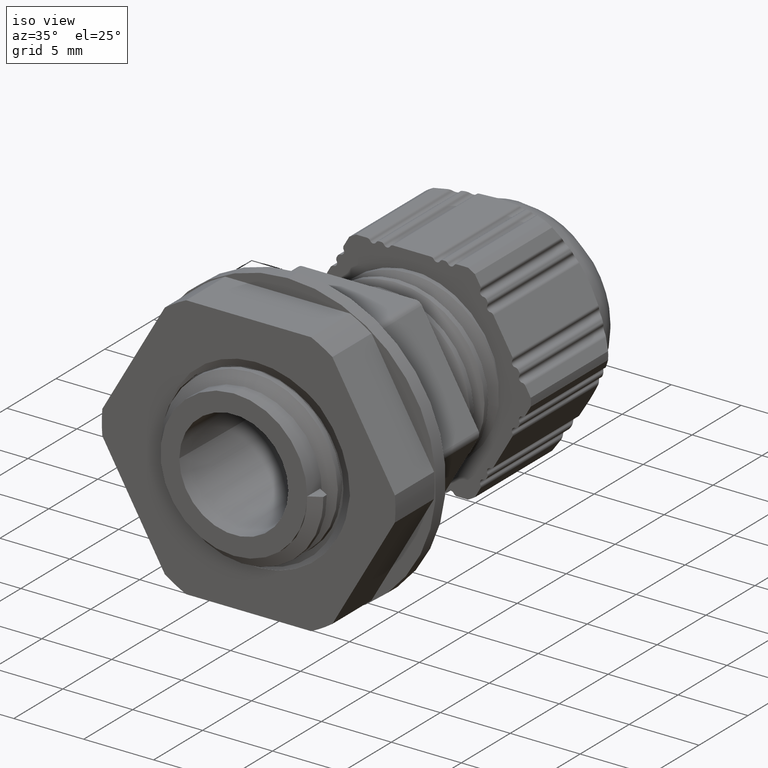
[diagram: clean part render]
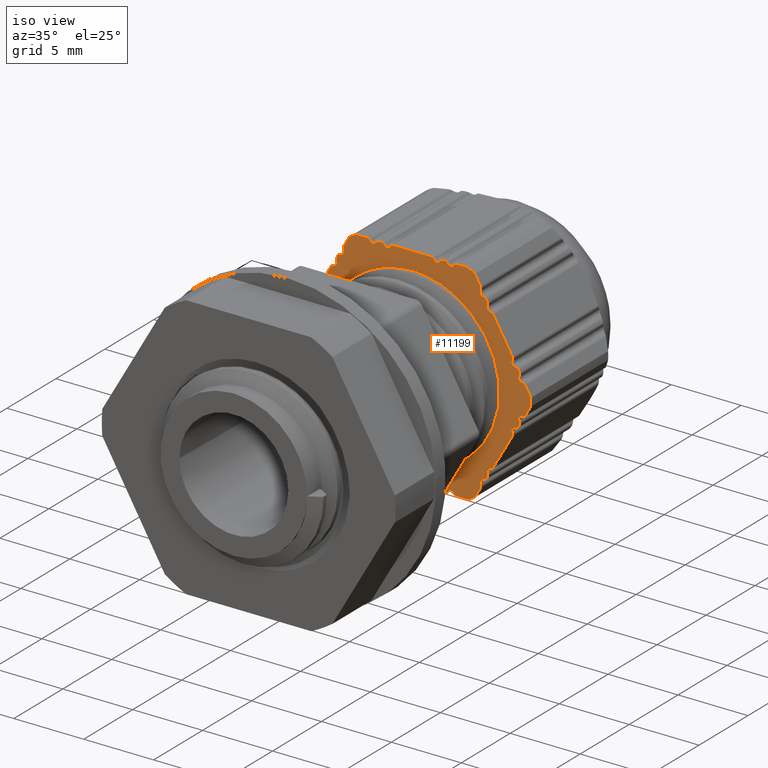
[diagram: same view with one face highlighted and labeled with its STEP entity id]
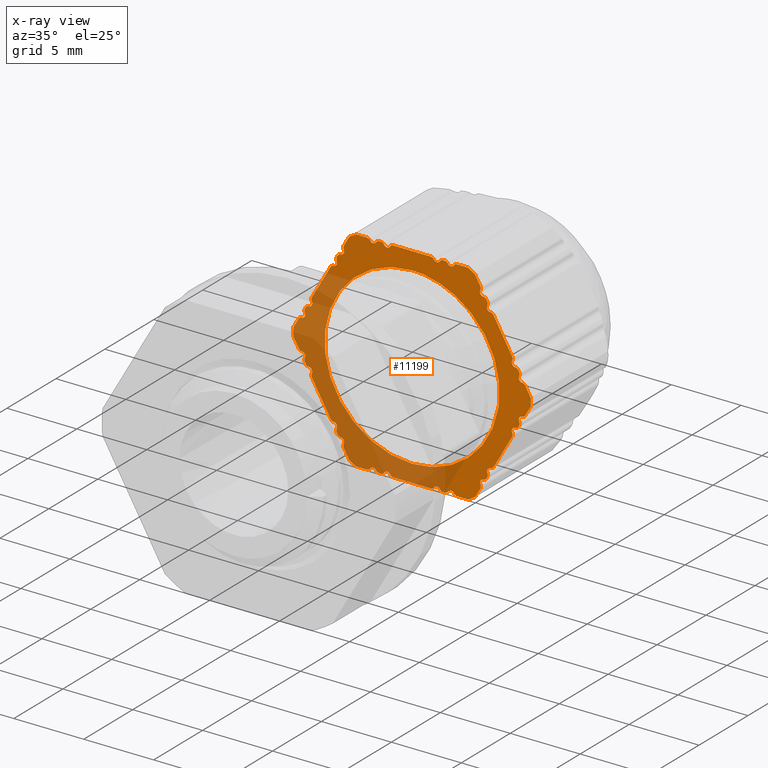
[diagram: x-ray of the same camera — body ghosted, the highlighted face saturated]
A machine part, iso view. The second image highlights one B-rep face of the part: STEP entity #11199.
The next image is the same camera in x-ray: the body ghosted, the highlighted face saturated — about 42% of this face is hidden behind the body in this view.
In plain terms, the highlighted planar face has unit normal (0, 1, 0).
Its self-contained STEP definition (entity closure, byte-faithful):
#258 = CIRCLE ( 'NONE', #269, 0.2500000000000028300 ) ;
#264 = AXIS2_PLACEMENT_3D ( 'NONE', #8399, #8390, #8379 ) ;
#266 = CIRCLE ( 'NONE', #300, 0.2500000000000036600 ) ;
#269 = AXIS2_PLACEMENT_3D ( 'NONE', #8602, #8639, #8624 ) ;
#280 = VECTOR ( 'NONE', #8393, 1000.000000000000000 ) ;
#298 = CIRCLE ( 'NONE', #309, 0.2499999999999985000 ) ;
#300 = AXIS2_PLACEMENT_3D ( 'NONE', #8402, #8401, #8380 ) ;
#304 = CIRCLE ( 'NONE', #264, 0.2499999999999976100 ) ;
#309 = AXIS2_PLACEMENT_3D ( 'NONE', #8441, #8420, #8417 ) ;
#310 = CIRCLE ( 'NONE', #365, 0.2500000000000028300 ) ;
#316 = CIRCLE ( 'NONE', #317, 0.2500000000000223200 ) ;
#317 = AXIS2_PLACEMENT_3D ( 'NONE', #8949, #8962, #8939 ) ;
#327 = VECTOR ( 'NONE', #8987, 1000.000000000000000 ) ;
#329 = CIRCLE ( 'NONE', #352, 0.2500000000000019400 ) ;
#336 = CIRCLE ( 'NONE', #343, 0.2499999999999980600 ) ;
#343 = AXIS2_PLACEMENT_3D ( 'NONE', #9049, #9045, #9021 ) ;
#352 = AXIS2_PLACEMENT_3D ( 'NONE', #8950, #8930, #8951 ) ;
#357 = VECTOR ( 'NONE', #8936, 1000.000000000000000 ) ;
#365 = AXIS2_PLACEMENT_3D ( 'NONE', #8821, #8793, #8822 ) ;
#369 = VECTOR ( 'NONE', #8867, 1000.000000000000000 ) ;
#371 = VECTOR ( 'NONE', #8847, 1000.000000000000000 ) ;
#374 = CIRCLE ( 'NONE', #429, 0.2500000000000045500 ) ;
#377 = CIRCLE ( 'NONE', #396, 0.2500000000000028300 ) ;
#378 = AXIS2_PLACEMENT_3D ( 'NONE', #9185, #9174, #9175 ) ;
#386 = AXIS2_PLACEMENT_3D ( 'NONE', #9111, #9092, #9094 ) ;
#387 = CIRCLE ( 'NONE', #432, 0.2500000000000028300 ) ;
#388 = AXIS2_PLACEMENT_3D ( 'NONE', #9139, #9126, #9151 ) ;
#389 = CIRCLE ( 'NONE', #410, 0.2500000000000023900 ) ;
#390 = CIRCLE ( 'NONE', #392, 0.2499999999999985000 ) ;
#392 = AXIS2_PLACEMENT_3D ( 'NONE', #9076, #9078, #9100 ) ;
#394 = CIRCLE ( 'NONE', #399, 0.2499999999999980600 ) ;
#396 = AXIS2_PLACEMENT_3D ( 'NONE', #9127, #9148, #9128 ) ;
#397 = VECTOR ( 'NONE', #9188, 1000.000000000000000 ) ;
#398 = AXIS2_PLACEMENT_3D ( 'NONE', #9183, #9160, #9202 ) ;
#399 = AXIS2_PLACEMENT_3D ( 'NONE', #9089, #9090, #9086 ) ;
#401 = CIRCLE ( 'NONE', #388, 0.2500000000000036600 ) ;
#402 = AXIS2_PLACEMENT_3D ( 'NONE', #9163, #9189, #9162 ) ;
#403 = CIRCLE ( 'NONE', #402, 0.2499999999999985000 ) ;
#404 = VECTOR ( 'NONE', #9150, 1000.000000000000000 ) ;
#405 = CIRCLE ( 'NONE', #427, 0.2499999999999447100 ) ;
#406 = CIRCLE ( 'NONE', #415, 0.2499999999999985000 ) ;
#410 = AXIS2_PLACEMENT_3D ( 'NONE', #9037, #9022, #9051 ) ;
#415 = AXIS2_PLACEMENT_3D ( 'NONE', #9184, #9168, #9158 ) ;
#418 = CIRCLE ( 'NONE', #378, 0.2500000000000730500 ) ;
#423 = CIRCLE ( 'NONE', #386, 0.2499999999999985000 ) ;
#424 = CIRCLE ( 'NONE', #398, 0.2499999999999985000 ) ;
#427 = AXIS2_PLACEMENT_3D ( 'NONE', #9215, #9206, #9208 ) ;
#429 = AXIS2_PLACEMENT_3D ( 'NONE', #9117, #9149, #9147 ) ;
#430 = VECTOR ( 'NONE', #9187, 1000.000000000000000 ) ;
#432 = AXIS2_PLACEMENT_3D ( 'NONE', #9115, #9079, #9098 ) ;
#435 = CIRCLE ( 'NONE', #440, 0.2499999999999447100 ) ;
#436 = AXIS2_PLACEMENT_3D ( 'NONE', #9341, #9372, #9363 ) ;
#437 = VECTOR ( 'NONE', #9405, 1000.000000000000000 ) ;
#438 = CIRCLE ( 'NONE', #551, 0.2499999999999438500 ) ;
#440 = AXIS2_PLACEMENT_3D ( 'NONE', #9316, #9328, #9304 ) ;
#441 = CIRCLE ( 'NONE', #459, 0.2499999999999993600 ) ;
#454 = CIRCLE ( 'NONE', #461, 0.2499999999999442700 ) ;
#457 = AXIS2_PLACEMENT_3D ( 'NONE', #9384, #9344, #9395 ) ;
#458 = AXIS2_PLACEMENT_3D ( 'NONE', #9289, #9290, #9291 ) ;
#459 = AXIS2_PLACEMENT_3D ( 'NONE', #9207, #9209, #9246 ) ;
#461 = AXIS2_PLACEMENT_3D ( 'NONE', #9385, #9373, #9382 ) ;
#462 = AXIS2_PLACEMENT_3D ( 'NONE', #9310, #9312, #9317 ) ;
#463 = CIRCLE ( 'NONE', #457, 0.2500000000000080500 ) ;
#464 = AXIS2_PLACEMENT_3D ( 'NONE', #9244, #9227, #9235 ) ;
#466 = CIRCLE ( 'NONE', #468, 0.2499999999999442700 ) ;
#468 = AXIS2_PLACEMENT_3D ( 'NONE', #9420, #9408, #9418 ) ;
#469 = AXIS2_PLACEMENT_3D ( 'NONE', #9240, #9226, #9241 ) ;
#470 = CIRCLE ( 'NONE', #436, 0.2499999999999976100 ) ;
#478 = CIRCLE ( 'NONE', #484, 0.2500000000000088800 ) ;
#480 = AXIS2_PLACEMENT_3D ( 'NONE', #9224, #9243, #9237 ) ;
#481 = CIRCLE ( 'NONE', #462, 0.2499999999999993600 ) ;
#484 = AXIS2_PLACEMENT_3D ( 'NONE', #9219, #9230, #9228 ) ;
#486 = VECTOR ( 'NONE', #9321, 1000.000000000000000 ) ;
#487 = CIRCLE ( 'NONE', #469, 0.2499999999999447100 ) ;
#489 = CIRCLE ( 'NONE', #480, 0.2499999999999985000 ) ;
#491 = CIRCLE ( 'NONE', #464, 0.2499999999999441600 ) ;
#492 = VECTOR ( 'NONE', #9287, 1000.000000000000000 ) ;
#496 = CIRCLE ( 'NONE', #458, 0.2500000000000080500 ) ;
#498 = CIRCLE ( 'NONE', #508, 0.2499999999999993600 ) ;
#499 = CIRCLE ( 'NONE', #505, 0.2500000000000080500 ) ;
#501 = AXIS2_PLACEMENT_3D ( 'NONE', #9401, #9431, #9422 ) ;
#504 = CIRCLE ( 'NONE', #522, 0.2499999999999441600 ) ;
#505 = AXIS2_PLACEMENT_3D ( 'NONE', #9663, #9666, #9684 ) ;
#506 = CIRCLE ( 'NONE', #571, 0.2499999999999993600 ) ;
#507 = AXIS2_PLACEMENT_3D ( 'NONE', #9569, #9545, #9566 ) ;
#508 = AXIS2_PLACEMENT_3D ( 'NONE', #9659, #9638, #9628 ) ;
#510 = VECTOR ( 'NONE', #9485, 1000.000000000000000 ) ;
#512 = CIRCLE ( 'NONE', #526, 0.2499999999999991400 ) ;
#513 = VECTOR ( 'NONE', #9507, 1000.000000000000000 ) ;
#514 = AXIS2_PLACEMENT_3D ( 'NONE', #9521, #9513, #9492 ) ;
#516 = VECTOR ( 'NONE', #9409, 1000.000000000000000 ) ;
#517 = AXIS2_PLACEMENT_3D ( 'NONE', #9415, #9416, #9421 ) ;
#518 = CIRCLE ( 'NONE', #535, 0.2499999999999993600 ) ;
#520 = CIRCLE ( 'NONE', #501, 0.2499999999999438500 ) ;
#522 = AXIS2_PLACEMENT_3D ( 'NONE', #9442, #9469, #9461 ) ;
#523 = AXIS2_PLACEMENT_3D ( 'NONE', #9652, #9667, #9644 ) ;
#524 = VECTOR ( 'NONE', #9567, 1000.000000000000000 ) ;
#525 = VECTOR ( 'NONE', #9531, 1000.000000000000000 ) ;
#526 = AXIS2_PLACEMENT_3D ( 'NONE', #9447, #9470, #9452 ) ;
#527 = VECTOR ( 'NONE', #9533, 1000.000000000000000 ) ;
#532 = AXIS2_PLACEMENT_3D ( 'NONE', #9478, #9483, #9439 ) ;
#533 = CIRCLE ( 'NONE', #546, 0.2499999999999438500 ) ;
#535 = AXIS2_PLACEMENT_3D ( 'NONE', #9486, #9515, #9497 ) ;
#536 = VECTOR ( 'NONE', #9432, 1000.000000000000000 ) ;
#537 = CIRCLE ( 'NONE', #532, 0.2499999999999993600 ) ;
#539 = CIRCLE ( 'NONE', #523, 0.2500000000000082700 ) ;
#540 = CIRCLE ( 'NONE', #554, 0.2500000000000006700 ) ;
#543 = CIRCLE ( 'NONE', #507, 0.2500000000000076100 ) ;
#546 = AXIS2_PLACEMENT_3D ( 'NONE', #9303, #9456, #9475 ) ;
#547 = CIRCLE ( 'NONE', #514, 0.2500000000000080500 ) ;
#548 = VECTOR ( 'NONE', #9660, 1000.000000000000000 ) ;
#551 = AXIS2_PLACEMENT_3D ( 'NONE', #9417, #9402, #9436 ) ;
#554 = AXIS2_PLACEMENT_3D ( 'NONE', #9634, #9625, #9646 ) ;
#557 = CIRCLE ( 'NONE', #517, 0.2500000000000080500 ) ;
#563 = CIRCLE ( 'NONE', #586, 0.2499999999999987000 ) ;
#564 = VECTOR ( 'NONE', #9674, 1000.000000000000000 ) ;
#567 = CIRCLE ( 'NONE', #589, 0.2500000000000080500 ) ;
#568 = VECTOR ( 'NONE', #9786, 1000.000000000000000 ) ;
#569 = CIRCLE ( 'NONE', #576, 0.2500000000000080500 ) ;
#571 = AXIS2_PLACEMENT_3D ( 'NONE', #9678, #9707, #9702 ) ;
#574 = AXIS2_PLACEMENT_3D ( 'NONE', #9686, #9688, #9689 ) ;
#576 = AXIS2_PLACEMENT_3D ( 'NONE', #9819, #9849, #9840 ) ;
#577 = AXIS2_PLACEMENT_3D ( 'NONE', #9825, #9822, #9821 ) ;
#584 = VECTOR ( 'NONE', #9812, 1000.000000000000000 ) ;
#585 = CIRCLE ( 'NONE', #616, 0.2500000000000080500 ) ;
#586 = AXIS2_PLACEMENT_3D ( 'NONE', #9712, #9693, #9692 ) ;
#589 = AXIS2_PLACEMENT_3D ( 'NONE', #9816, #9813, #9817 ) ;
#591 = CIRCLE ( 'NONE', #600, 0.2499999999999646700 ) ;
#595 = CIRCLE ( 'NONE', #610, 0.2499999999999993600 ) ;
#600 = AXIS2_PLACEMENT_3D ( 'NONE', #9705, #9691, #9714 ) ;
#605 = CIRCLE ( 'NONE', #577, 0.2500000000000086600 ) ;
#609 = AXIS2_PLACEMENT_3D ( 'NONE', #9694, #9673, #9711 ) ;
#610 = AXIS2_PLACEMENT_3D ( 'NONE', #9752, #9732, #9729 ) ;
#612 = CIRCLE ( 'NONE', #609, 0.2499999999999958900 ) ;
#613 = CIRCLE ( 'NONE', #574, 0.2499999999999985000 ) ;
#616 = AXIS2_PLACEMENT_3D ( 'NONE', #9780, #9793, #9764 ) ;
#626 = AXIS2_PLACEMENT_3D ( 'NONE', #9901, #9896, #9866 ) ;
#644 = CIRCLE ( 'NONE', #626, 0.2500000000000028300 ) ;
#735 = AXIS2_PLACEMENT_3D ( 'NONE', #7300, #7288, #7284 ) ;
#1041 = CARTESIAN_POINT ( 'NONE',  ( 0.0000000000000000000, 3.533406263480283600, 0.0000000000000000000 ) ) ;
#1044 = DIRECTION ( 'NONE',  ( 0.0000000000000000000, 1.000000000000000000, 0.0000000000000000000 ) ) ;
#1061 = DIRECTION ( 'NONE',  ( 0.0000000000000000000, 0.0000000000000000000, -1.000000000000000000 ) ) ;
#1154 = DIRECTION ( 'NONE',  ( 8.881784197001252300E-016, 0.0000000000000000000, -1.000000000000000000 ) ) ;
#1173 = CARTESIAN_POINT ( 'NONE',  ( 0.0000000000000000000, 3.533406263480283600, 0.0000000000000000000 ) ) ;
#1177 = DIRECTION ( 'NONE',  ( 0.0000000000000000000, 1.000000000000000000, 0.0000000000000000000 ) ) ;
#1697 = DIRECTION ( 'NONE',  ( 0.0000000000000000000, 1.000000000000000000, 0.0000000000000000000 ) ) ;
#1701 = CARTESIAN_POINT ( 'NONE',  ( 0.0000000000000000000, 3.533406263480283600, 0.0000000000000000000 ) ) ;
#1720 = DIRECTION ( 'NONE',  ( 0.0000000000000000000, 0.0000000000000000000, -1.000000000000000000 ) ) ;
#2036 = EDGE_CURVE ( 'NONE', #13283, #13227, #14269, .T. ) ;
#2054 = EDGE_CURVE ( 'NONE', #13280, #13231, #14290, .T. ) ;
#2155 = EDGE_CURVE ( 'NONE', #13231, #13283, #14351, .T. ) ;
#2339 = CARTESIAN_POINT ( 'NONE',  ( -1.780724480503832000, 3.533406263480283600, 7.499999999999964500 ) ) ;
#2347 = DIRECTION ( 'NONE',  ( 0.0000000000000000000, 0.0000000000000000000, -1.000000000000000000 ) ) ;
#2362 = DIRECTION ( 'NONE',  ( 0.0000000000000000000, 1.000000000000000000, 0.0000000000000000000 ) ) ;
#2368 = DIRECTION ( 'NONE',  ( 1.040834085585780100E-014, 0.0000000000000000000, -1.000000000000000000 ) ) ;
#2375 = CARTESIAN_POINT ( 'NONE',  ( 0.0000000000000000000, 3.533406263480282300, 0.0000000000000000000 ) ) ;
#2378 = DIRECTION ( 'NONE',  ( 0.0000000000000000000, 1.000000000000000000, 0.0000000000000000000 ) ) ;
#2387 = DIRECTION ( 'NONE',  ( 0.0000000000000000000, 1.000000000000000000, 0.0000000000000000000 ) ) ;
#2411 = CARTESIAN_POINT ( 'NONE',  ( 0.0000000000000000000, 3.533406263480282300, 0.0000000000000000000 ) ) ;
#2427 = DIRECTION ( 'NONE',  ( 1.953992523340275500E-014, 0.0000000000000000000, -1.000000000000000000 ) ) ;
#2440 = CARTESIAN_POINT ( 'NONE',  ( -3.213737182396349200, 3.533406263480283600, 7.250000000000057700 ) ) ;
#2445 = DIRECTION ( 'NONE',  ( -3.469446951954393600E-015, 0.0000000000000000000, -1.000000000000000000 ) ) ;
#2486 = DIRECTION ( 'NONE',  ( 0.0000000000000000000, 1.000000000000000000, 0.0000000000000000000 ) ) ;
#2540 = DIRECTION ( 'NONE',  ( 0.0000000000000000000, 0.0000000000000000000, -1.000000000000000000 ) ) ;
#2542 = DIRECTION ( 'NONE',  ( 0.0000000000000000000, 1.000000000000000000, 0.0000000000000000000 ) ) ;
#2543 = LINE ( 'NONE', #2552, #13818 ) ;
#2544 = CARTESIAN_POINT ( 'NONE',  ( 1.780724480504744600, 3.533406263480283600, 7.499999999999533700 ) ) ;
#2546 = DIRECTION ( 'NONE',  ( 0.0000000000000000000, 1.000000000000000000, 0.0000000000000000000 ) ) ;
#2552 = CARTESIAN_POINT ( 'NONE',  ( -4.330127018921999100, 3.533406263480283600, 7.500000000000000000 ) ) ;
#2555 = CARTESIAN_POINT ( 'NONE',  ( 0.0000000000000000000, 3.533406263480282300, 0.0000000000000000000 ) ) ;
#2560 = DIRECTION ( 'NONE',  ( 0.0000000000000000000, 1.000000000000000000, 0.0000000000000000000 ) ) ;
#2563 = CARTESIAN_POINT ( 'NONE',  ( 3.213737182397261800, 3.533406263480283600, 7.249999999999629600 ) ) ;
#2567 = DIRECTION ( 'NONE',  ( 1.734723475976817500E-015, 0.0000000000000000000, -1.000000000000000000 ) ) ;
#2574 = DIRECTION ( 'NONE',  ( 3.469446951954381400E-015, 0.0000000000000000000, -1.000000000000000000 ) ) ;
#2576 = DIRECTION ( 'NONE',  ( 1.000000000000000000, 0.0000000000000000000, -0.0000000000000000000 ) ) ;
#2585 = DIRECTION ( 'NONE',  ( 0.0000000000000000000, 1.000000000000000000, 0.0000000000000000000 ) ) ;
#2602 = CARTESIAN_POINT ( 'NONE',  ( -2.780724480504100700, 3.533406263480283600, 7.499999999999913800 ) ) ;
#2603 = DIRECTION ( 'NONE',  ( -6.938893903907005100E-015, 0.0000000000000000000, -1.000000000000000000 ) ) ;
#2637 = DIRECTION ( 'NONE',  ( 0.0000000000000000000, 0.0000000000000000000, -1.000000000000000000 ) ) ;
#2638 = DIRECTION ( 'NONE',  ( 0.0000000000000000000, 1.000000000000000000, 0.0000000000000000000 ) ) ;
#2648 = CARTESIAN_POINT ( 'NONE',  ( 0.0000000000000000000, 3.533406263480282300, 0.0000000000000000000 ) ) ;
#2649 = CARTESIAN_POINT ( 'NONE',  ( 2.780724480505012400, 3.533406263480283600, 7.499999999999487500 ) ) ;
#2654 = DIRECTION ( 'NONE',  ( 1.214306433183725800E-014, 0.0000000000000000000, -1.000000000000000000 ) ) ;
#2661 = DIRECTION ( 'NONE',  ( 0.0000000000000000000, 1.000000000000000000, 0.0000000000000000000 ) ) ;
#2750 = CARTESIAN_POINT ( 'NONE',  ( 0.0000000000000000000, 3.533406263480282300, 0.0000000000000000000 ) ) ;
#2753 = DIRECTION ( 'NONE',  ( 0.0000000000000000000, 1.000000000000000000, 0.0000000000000000000 ) ) ;
#2758 = DIRECTION ( 'NONE',  ( 0.0000000000000000000, 0.0000000000000000000, -1.000000000000000000 ) ) ;
#2770 = CARTESIAN_POINT ( 'NONE',  ( -4.330127018921999100, 3.533406263480283600, 7.500000000000000000 ) ) ;
#2786 = LINE ( 'NONE', #2770, #13893 ) ;
#2795 = DIRECTION ( 'NONE',  ( 1.000000000000000000, 0.0000000000000000000, -0.0000000000000000000 ) ) ;
#2812 = CARTESIAN_POINT ( 'NONE',  ( 0.0000000000000000000, 3.533406263480282300, 0.0000000000000000000 ) ) ;
#2822 = DIRECTION ( 'NONE',  ( 1.598721155460225700E-014, 0.0000000000000000000, -1.000000000000000000 ) ) ;
#2825 = DIRECTION ( 'NONE',  ( 0.0000000000000000000, 1.000000000000000000, 0.0000000000000000000 ) ) ;
#2907 = CARTESIAN_POINT ( 'NONE',  ( 5.446328455510271600, 3.533406263480283600, 3.116904044385461000 ) ) ;
#2908 = CARTESIAN_POINT ( 'NONE',  ( 4.732590165421639100, 3.533406263480283200, 4.121193344824253500 ) ) ;
#2909 = CARTESIAN_POINT ( 'NONE',  ( 3.995317728115943500, 3.533406263480283600, 4.826004841487868000 ) ) ;
#2910 = CARTESIAN_POINT ( 'NONE',  ( 3.503640756612838500, 3.533406263480283200, 5.194028927455806700 ) ) ;
#2911 = CARTESIAN_POINT ( 'NONE',  ( 0.8410840005870245900, 3.533406263480283600, 6.205155472826242600 ) ) ;
#2913 = CARTESIAN_POINT ( 'NONE',  ( 3.835983850099598400, 3.533406263480283600, 4.953651476680749800 ) ) ;
#2917 = CARTESIAN_POINT ( 'NONE',  ( 6.223963113955390400, 3.533406263480275200, 0.8006479284925087600 ) ) ;
#2920 = CARTESIAN_POINT ( 'NONE',  ( 6.275228967852728900, 3.533406263480273900, -0.01597968393243131100 ) ) ;
#2923 = CARTESIAN_POINT ( 'NONE',  ( 6.260666115663017500, 3.533406263480282700, -0.4315503880604149600 ) ) ;
#2927 = CARTESIAN_POINT ( 'NONE',  ( 6.158923842275729800, 3.533406263480282300, 1.202843924650827600 ) ) ;
#2928 = CARTESIAN_POINT ( 'NONE',  ( 5.714953987886914900, 3.533406263480283600, 2.567533755694167800 ) ) ;
#2929 = CARTESIAN_POINT ( 'NONE',  ( 5.232460261417675600, 3.533406263480283600, 3.464535159578300900 ) ) ;
#2933 = CARTESIAN_POINT ( 'NONE',  ( 4.453206386521884500, 3.533406263480283600, 4.421127523576011200 ) ) ;
#2939 = CARTESIAN_POINT ( 'NONE',  ( 3.329741593036361200, 3.533406263480285000, 5.307195772306950100 ) ) ;
#2940 = CARTESIAN_POINT ( 'NONE',  ( 2.797698481971767400, 3.533406263480285000, 5.617185875326036600 ) ) ;
#2941 = CARTESIAN_POINT ( 'NONE',  ( 2.427142209652667600, 3.533406263480285000, 5.786814516242014200 ) ) ;
#2942 = CARTESIAN_POINT ( 'NONE',  ( 1.654773370134679400, 3.533406263480285000, 6.053095624947622400 ) ) ;
#2943 = CARTESIAN_POINT ( 'NONE',  ( 1.250617613113582900, 3.533406263480282700, 6.149644829989471300 ) ) ;
#2951 = CARTESIAN_POINT ( 'NONE',  ( 6.002031491530114900, 3.533406263480283200, 1.796926439417585200 ) ) ;
#2956 = CARTESIAN_POINT ( 'NONE',  ( 6.205155472826246100, 3.533406263480283600, -0.8410840005869993900 ) ) ;
#2957 = CARTESIAN_POINT ( 'NONE',  ( 5.939332386837363300, 3.533406263480283600, 1.994483576034780500 ) ) ;
#2958 = CARTESIAN_POINT ( 'NONE',  ( 5.795735996155848100, 3.533406263480283200, 2.379722294569487100 ) ) ;
#3111 = CARTESIAN_POINT ( 'NONE',  ( 6.193149878997015600, 3.533406263480282700, -0.9002635360976540800 ) ) ;
#3142 = CARTESIAN_POINT ( 'NONE',  ( 6.180270242075154700, 3.533406263480283600, -0.9592724544405992800 ) ) ;
#3154 = CARTESIAN_POINT ( 'NONE',  ( 6.166524863198427300, 3.533406263480283200, -1.018072252620419300 ) ) ;
#3155 = CARTESIAN_POINT ( 'NONE',  ( 6.205155472826246100, 3.533406263480283600, -0.8410840005869993900 ) ) ;
#3213 = CARTESIAN_POINT ( 'NONE',  ( 0.7196151259693627200, 3.533406263480282700, 6.212710800800415700 ) ) ;
#3217 = CARTESIAN_POINT ( 'NONE',  ( 0.6588181284515380900, 3.533406263480283600, 6.215179697613225000 ) ) ;
#3229 = CARTESIAN_POINT ( 'NONE',  ( 0.8410840005870245900, 3.533406263480283600, 6.205155472826242600 ) ) ;
#3260 = CARTESIAN_POINT ( 'NONE',  ( 0.7803829392914336500, 3.533406263480283600, 6.209368727653944700 ) ) ;
#3321 = B_SPLINE_CURVE_WITH_KNOTS ( 'NONE', 3,
 ( #2956, #2923, #2920, #2917, #2927, #2951, #2957, #2958, #2928, #2907, #2929, #2908, #2933, #2909, #2913, #2910, #2939, #2940, #2941, #2942, #2943, #2911 ),
 .UNSPECIFIED., .F., .F.,
 ( 4, 2, 2, 2, 2, 2, 2, 2, 2, 2, 4 ),
 ( 2.597043306668766300E-017, 0.001237602562898681400, 0.002475205125797336800, 0.003094006407246664600, 0.003712807688695992400, 0.004950410251594647600, 0.006188012814493303200, 0.006806814095942631900, 0.007425615377391960600, 0.008663217940290618800, 0.009900820503189276100 ),
 .UNSPECIFIED. ) ;
#3323 = B_SPLINE_CURVE_WITH_KNOTS ( 'NONE', 3,
 ( #3154, #3142, #3111, #3155 ),
 .UNSPECIFIED., .F., .F.,
 ( 4, 4 ),
 ( 4.336808689942017700E-019, 0.0001811550864813421200 ),
 .UNSPECIFIED. ) ;
#3327 = B_SPLINE_CURVE_WITH_KNOTS ( 'NONE', 3,
 ( #3229, #3260, #3213, #3217 ),
 .UNSPECIFIED., .F., .F.,
 ( 4, 4 ),
 ( 0.0000000000000000000, 0.0001825413192345487500 ),
 .UNSPECIFIED. ) ;
#3798 = LINE ( 'NONE', #3809, #14074 ) ;
#3799 = DIRECTION ( 'NONE',  ( -0.5000000000000168800, 0.0000000000000000000, -0.8660254037844289400 ) ) ;
#3809 = CARTESIAN_POINT ( 'NONE',  ( 8.660254037843998300, 3.533406263480283600, 0.0000000000000000000 ) ) ;
#3930 = CARTESIAN_POINT ( 'NONE',  ( -4.330127018921999100, 3.533406263480283600, -7.500000000000000000 ) ) ;
#3939 = DIRECTION ( 'NONE',  ( -0.5000000000000168800, 0.0000000000000000000, 0.8660254037844289400 ) ) ;
#3952 = LINE ( 'NONE', #3930, #14029 ) ;
#4017 = DIRECTION ( 'NONE',  ( 0.5000000000000168800, 0.0000000000000000000, -0.8660254037844289400 ) ) ;
#4029 = CARTESIAN_POINT ( 'NONE',  ( -4.330127018921999100, 3.533406263480283600, 7.500000000000000000 ) ) ;
#4033 = LINE ( 'NONE', #4029, #14141 ) ;
#4036 = DIRECTION ( 'NONE',  ( 0.5000000000000168800, 0.0000000000000000000, 0.8660254037844289400 ) ) ;
#4042 = LINE ( 'NONE', #4052, #14095 ) ;
#4044 = LINE ( 'NONE', #4053, #14128 ) ;
#4046 = DIRECTION ( 'NONE',  ( 1.000000000000000000, 0.0000000000000000000, -0.0000000000000000000 ) ) ;
#4052 = CARTESIAN_POINT ( 'NONE',  ( 4.330127018921999100, 3.533406263480283600, 7.500000000000000000 ) ) ;
#4053 = CARTESIAN_POINT ( 'NONE',  ( -8.660254037844000100, 3.533406263480283600, 0.0000000000000000000 ) ) ;
#4108 = LINE ( 'NONE', #4112, #14129 ) ;
#4112 = CARTESIAN_POINT ( 'NONE',  ( 4.330127018921999100, 3.533406263480283600, -7.500000000000000000 ) ) ;
#4113 = DIRECTION ( 'NONE',  ( -1.000000000000000000, 0.0000000000000000000, -0.0000000000000000000 ) ) ;
#4806 = CARTESIAN_POINT ( 'NONE',  ( 5.604828288130528700, 3.533406263480283600, -4.792152637257537200 ) ) ;
#4809 = DIRECTION ( 'NONE',  ( 0.0000000000000000000, 1.000000000000000000, 0.0000000000000000000 ) ) ;
#4826 = CARTESIAN_POINT ( 'NONE',  ( -1.347711778612377300, 3.533406263480283600, -7.249999999999450200 ) ) ;
#4827 = DIRECTION ( 'NONE',  ( 0.0000000000000000000, 1.000000000000000000, 0.0000000000000000000 ) ) ;
#4828 = CARTESIAN_POINT ( 'NONE',  ( 5.604828288131378700, 3.533406263480283600, 4.792152637257244100 ) ) ;
#4839 = DIRECTION ( 'NONE',  ( -1.040834085586054400E-014, 0.0000000000000000000, -1.000000000000000000 ) ) ;
#4840 = DIRECTION ( 'NONE',  ( 0.0000000000000000000, 0.0000000000000000000, -1.000000000000000000 ) ) ;
#4849 = DIRECTION ( 'NONE',  ( 0.0000000000000000000, 1.000000000000000000, 0.0000000000000000000 ) ) ;
#4850 = CARTESIAN_POINT ( 'NONE',  ( -5.604828288130468300, 3.533406263480283600, 4.792152637257670400 ) ) ;
#4851 = DIRECTION ( 'NONE',  ( 0.0000000000000000000, 1.000000000000000000, 0.0000000000000000000 ) ) ;
#4858 = CARTESIAN_POINT ( 'NONE',  ( -6.952540066742885800, 3.533406263480283600, 2.457847362742803500 ) ) ;
#4859 = DIRECTION ( 'NONE',  ( 0.0000000000000000000, 1.000000000000000000, 0.0000000000000000000 ) ) ;
#4860 = CARTESIAN_POINT ( 'NONE',  ( -1.347711778611409400, 3.533406263480283600, 7.250000000000006200 ) ) ;
#4872 = CARTESIAN_POINT ( 'NONE',  ( 1.347711778611763600, 3.533406263480283600, -7.249999999999894300 ) ) ;
#4874 = DIRECTION ( 'NONE',  ( -3.469446951953532500E-015, 0.0000000000000000000, -1.000000000000000000 ) ) ;
#4877 = DIRECTION ( 'NONE',  ( 6.938893903909437200E-015, 0.0000000000000000000, -1.000000000000000000 ) ) ;
#4881 = DIRECTION ( 'NONE',  ( 1.040834085586058100E-014, 0.0000000000000000000, -1.000000000000000000 ) ) ;
#4889 = DIRECTION ( 'NONE',  ( 0.0000000000000000000, 1.000000000000000000, 0.0000000000000000000 ) ) ;
#4890 = DIRECTION ( 'NONE',  ( 0.0000000000000000000, 0.0000000000000000000, -1.000000000000000000 ) ) ;
#4894 = DIRECTION ( 'NONE',  ( 0.0000000000000000000, 1.000000000000000000, 0.0000000000000000000 ) ) ;
#4895 = DIRECTION ( 'NONE',  ( 0.0000000000000000000, 0.0000000000000000000, -1.000000000000000000 ) ) ;
#4897 = CARTESIAN_POINT ( 'NONE',  ( -6.952540066742899100, 3.533406263480283600, -2.457847362741883800 ) ) ;
#4933 = DIRECTION ( 'NONE',  ( 0.0000000000000000000, 0.0000000000000000000, -1.000000000000000000 ) ) ;
#4937 = DIRECTION ( 'NONE',  ( 0.0000000000000000000, 1.000000000000000000, 0.0000000000000000000 ) ) ;
#4952 = DIRECTION ( 'NONE',  ( 0.0000000000000000000, 1.000000000000000000, 0.0000000000000000000 ) ) ;
#4955 = CARTESIAN_POINT ( 'NONE',  ( 6.952540066743055500, 3.533406263480283600, -2.457847362742700400 ) ) ;
#4960 = DIRECTION ( 'NONE',  ( 0.0000000000000000000, 0.0000000000000000000, -1.000000000000000000 ) ) ;
#4972 = DIRECTION ( 'NONE',  ( 0.0000000000000000000, 1.000000000000000000, 0.0000000000000000000 ) ) ;
#4973 = CARTESIAN_POINT ( 'NONE',  ( -5.604828288131207300, 3.533406263480283600, -4.792152637257146400 ) ) ;
#4974 = DIRECTION ( 'NONE',  ( 3.469446951952527900E-015, 0.0000000000000000000, -1.000000000000000000 ) ) ;
#4977 = CARTESIAN_POINT ( 'NONE',  ( 6.952540066742882300, 3.533406263480283600, 2.457847362741931700 ) ) ;
#4984 = DIRECTION ( 'NONE',  ( 0.0000000000000000000, 1.000000000000000000, 0.0000000000000000000 ) ) ;
#4985 = DIRECTION ( 'NONE',  ( 1.040834085586058100E-014, 0.0000000000000000000, -1.000000000000000000 ) ) ;
#5056 = DIRECTION ( 'NONE',  ( 0.0000000000000000000, 1.000000000000000000, 0.0000000000000000000 ) ) ;
#5057 = DIRECTION ( 'NONE',  ( 1.734723475977124400E-015, 0.0000000000000000000, -1.000000000000000000 ) ) ;
#5105 = CARTESIAN_POINT ( 'NONE',  ( 1.347711778612502400, 3.533406263480283600, 7.249999999999567500 ) ) ;
#7275 = FACE_OUTER_BOUND ( 'NONE', #12978, .T. ) ;
#7284 = DIRECTION ( 'NONE',  ( 0.0000000000000000000, -0.0000000000000000000, 1.000000000000000000 ) ) ;
#7288 = DIRECTION ( 'NONE',  ( 0.0000000000000000000, 1.000000000000000000, 0.0000000000000000000 ) ) ;
#7300 = CARTESIAN_POINT ( 'NONE',  ( 0.0000000000000000000, 3.533406263480283200, 0.0000000000000000000 ) ) ;
#7303 = FACE_BOUND ( 'NONE', #12279, .T. ) ;
#7321 = PLANE ( 'NONE',  #735 ) ;
#8379 = DIRECTION ( 'NONE',  ( 6.938893903907294600E-015, 0.0000000000000000000, -1.000000000000000000 ) ) ;
#8380 = DIRECTION ( 'NONE',  ( 0.0000000000000000000, 0.0000000000000000000, -1.000000000000000000 ) ) ;
#8389 = LINE ( 'NONE', #8397, #280 ) ;
#8390 = DIRECTION ( 'NONE',  ( 0.0000000000000000000, 1.000000000000000000, 0.0000000000000000000 ) ) ;
#8393 = DIRECTION ( 'NONE',  ( -1.000000000000000000, 0.0000000000000000000, -0.0000000000000000000 ) ) ;
#8397 = CARTESIAN_POINT ( 'NONE',  ( 4.330127018921999100, 3.533406263480283600, -7.500000000000000000 ) ) ;
#8399 = CARTESIAN_POINT ( 'NONE',  ( -5.604828288130497600, 3.533406263480283600, 5.292152637257505200 ) ) ;
#8401 = DIRECTION ( 'NONE',  ( 0.0000000000000000000, 1.000000000000000000, 0.0000000000000000000 ) ) ;
#8402 = CARTESIAN_POINT ( 'NONE',  ( 2.213737182396248400, 3.533406263480283600, -7.249999999999897000 ) ) ;
#8417 = DIRECTION ( 'NONE',  ( 0.0000000000000000000, 0.0000000000000000000, -1.000000000000000000 ) ) ;
#8420 = DIRECTION ( 'NONE',  ( 0.0000000000000000000, 1.000000000000000000, 0.0000000000000000000 ) ) ;
#8441 = CARTESIAN_POINT ( 'NONE',  ( -7.385552768635087700, 3.533406263480283600, 2.207847362742766600 ) ) ;
#8602 = CARTESIAN_POINT ( 'NONE',  ( -7.385552768635131200, 3.533406263480283600, 1.707847362742765300 ) ) ;
#8624 = DIRECTION ( 'NONE',  ( 6.938893903907149500E-015, 0.0000000000000000000, -1.000000000000000000 ) ) ;
#8639 = DIRECTION ( 'NONE',  ( 0.0000000000000000000, 1.000000000000000000, 0.0000000000000000000 ) ) ;
#8793 = DIRECTION ( 'NONE',  ( 0.0000000000000000000, 1.000000000000000000, 0.0000000000000000000 ) ) ;
#8821 = CARTESIAN_POINT ( 'NONE',  ( 5.171815586238272600, 3.533406263480283600, -5.542152637257601100 ) ) ;
#8822 = DIRECTION ( 'NONE',  ( -3.469446951953574700E-015, 0.0000000000000000000, -1.000000000000000000 ) ) ;
#8825 = CARTESIAN_POINT ( 'NONE',  ( 8.660254037843998300, 3.533406263480283600, 0.0000000000000000000 ) ) ;
#8838 = LINE ( 'NONE', #8825, #369 ) ;
#8839 = LINE ( 'NONE', #8840, #371 ) ;
#8840 = CARTESIAN_POINT ( 'NONE',  ( 4.330127018921999100, 3.533406263480283600, -7.500000000000000000 ) ) ;
#8847 = DIRECTION ( 'NONE',  ( -1.000000000000000000, 0.0000000000000000000, -0.0000000000000000000 ) ) ;
#8867 = DIRECTION ( 'NONE',  ( -0.5000000000000168800, 0.0000000000000000000, -0.8660254037844289400 ) ) ;
#8928 = LINE ( 'NONE', #8948, #357 ) ;
#8930 = DIRECTION ( 'NONE',  ( 0.0000000000000000000, 1.000000000000000000, 0.0000000000000000000 ) ) ;
#8936 = DIRECTION ( 'NONE',  ( -0.5000000000000168800, 0.0000000000000000000, -0.8660254037844289400 ) ) ;
#8939 = DIRECTION ( 'NONE',  ( 0.0000000000000000000, 0.0000000000000000000, -1.000000000000000000 ) ) ;
#8948 = CARTESIAN_POINT ( 'NONE',  ( 8.660254037843998300, 3.533406263480283600, 0.0000000000000000000 ) ) ;
#8949 = CARTESIAN_POINT ( 'NONE',  ( 7.385552768635138300, 3.533406263480283600, 1.707847362741869300 ) ) ;
#8950 = CARTESIAN_POINT ( 'NONE',  ( -2.213737182396889700, 3.533406263480283600, -7.249999999999447600 ) ) ;
#8951 = DIRECTION ( 'NONE',  ( 5.204170427930381100E-015, 0.0000000000000000000, -1.000000000000000000 ) ) ;
#8962 = DIRECTION ( 'NONE',  ( 0.0000000000000000000, 1.000000000000000000, 0.0000000000000000000 ) ) ;
#8981 = CARTESIAN_POINT ( 'NONE',  ( -4.330127018921999100, 3.533406263480283600, -7.500000000000000000 ) ) ;
#8983 = LINE ( 'NONE', #8981, #327 ) ;
#8987 = DIRECTION ( 'NONE',  ( -0.5000000000000168800, 0.0000000000000000000, 0.8660254037844289400 ) ) ;
#9021 = DIRECTION ( 'NONE',  ( 3.469446951953641000E-015, 0.0000000000000000000, -1.000000000000000000 ) ) ;
#9022 = DIRECTION ( 'NONE',  ( 0.0000000000000000000, 1.000000000000000000, 0.0000000000000000000 ) ) ;
#9037 = CARTESIAN_POINT ( 'NONE',  ( -7.385552768635149900, 3.533406263480283600, -1.707847362741818500 ) ) ;
#9045 = DIRECTION ( 'NONE',  ( 0.0000000000000000000, 1.000000000000000000, 0.0000000000000000000 ) ) ;
#9049 = CARTESIAN_POINT ( 'NONE',  ( 7.385552768635260900, 3.533406263480283600, -2.207847362742663100 ) ) ;
#9051 = DIRECTION ( 'NONE',  ( 0.0000000000000000000, 0.0000000000000000000, -1.000000000000000000 ) ) ;
#9076 = CARTESIAN_POINT ( 'NONE',  ( 1.780724480504009000, 3.533406263480283600, -7.499999999999861400 ) ) ;
#9078 = DIRECTION ( 'NONE',  ( 0.0000000000000000000, 1.000000000000000000, 0.0000000000000000000 ) ) ;
#9079 = DIRECTION ( 'NONE',  ( 0.0000000000000000000, 1.000000000000000000, 0.0000000000000000000 ) ) ;
#9086 = DIRECTION ( 'NONE',  ( 3.469446951953641000E-015, 0.0000000000000000000, -1.000000000000000000 ) ) ;
#9089 = CARTESIAN_POINT ( 'NONE',  ( -7.385552768635085900, 3.533406263480283600, -2.207847362741820300 ) ) ;
#9090 = DIRECTION ( 'NONE',  ( 0.0000000000000000000, 1.000000000000000000, 0.0000000000000000000 ) ) ;
#9092 = DIRECTION ( 'NONE',  ( 0.0000000000000000000, 1.000000000000000000, 0.0000000000000000000 ) ) ;
#9094 = DIRECTION ( 'NONE',  ( 0.0000000000000000000, 0.0000000000000000000, -1.000000000000000000 ) ) ;
#9098 = DIRECTION ( 'NONE',  ( 1.040834085586072400E-014, 0.0000000000000000000, -1.000000000000000000 ) ) ;
#9100 = DIRECTION ( 'NONE',  ( 1.734723475976817500E-015, 0.0000000000000000000, -1.000000000000000000 ) ) ;
#9111 = CARTESIAN_POINT ( 'NONE',  ( 5.604828288131340500, 3.533406263480283600, 5.292152637257249400 ) ) ;
#9115 = CARTESIAN_POINT ( 'NONE',  ( 7.385552768635302600, 3.533406263480283600, -1.707847362742662000 ) ) ;
#9117 = CARTESIAN_POINT ( 'NONE',  ( -5.171815586238968100, 3.533406263480283600, -5.542152637257187200 ) ) ;
#9124 = LINE ( 'NONE', #9137, #404 ) ;
#9126 = DIRECTION ( 'NONE',  ( 0.0000000000000000000, 1.000000000000000000, 0.0000000000000000000 ) ) ;
#9127 = CARTESIAN_POINT ( 'NONE',  ( -5.171815586238310800, 3.533406263480283600, 5.542152637257565600 ) ) ;
#9128 = DIRECTION ( 'NONE',  ( 3.469446951953574700E-015, 0.0000000000000000000, -1.000000000000000000 ) ) ;
#9137 = CARTESIAN_POINT ( 'NONE',  ( -4.330127018921999100, 3.533406263480283600, -7.500000000000000000 ) ) ;
#9139 = CARTESIAN_POINT ( 'NONE',  ( 5.171815586239140400, 3.533406263480283600, 5.542152637257285800 ) ) ;
#9147 = DIRECTION ( 'NONE',  ( 3.469446951953551100E-015, 0.0000000000000000000, -1.000000000000000000 ) ) ;
#9148 = DIRECTION ( 'NONE',  ( 0.0000000000000000000, 1.000000000000000000, 0.0000000000000000000 ) ) ;
#9149 = DIRECTION ( 'NONE',  ( 0.0000000000000000000, 1.000000000000000000, 0.0000000000000000000 ) ) ;
#9150 = DIRECTION ( 'NONE',  ( -0.5000000000000168800, 0.0000000000000000000, 0.8660254037844289400 ) ) ;
#9151 = DIRECTION ( 'NONE',  ( -3.469446951953563300E-015, 0.0000000000000000000, -1.000000000000000000 ) ) ;
#9158 = DIRECTION ( 'NONE',  ( 0.0000000000000000000, 0.0000000000000000000, -1.000000000000000000 ) ) ;
#9160 = DIRECTION ( 'NONE',  ( 0.0000000000000000000, 1.000000000000000000, 0.0000000000000000000 ) ) ;
#9162 = DIRECTION ( 'NONE',  ( -3.469446951953635100E-015, 0.0000000000000000000, -1.000000000000000000 ) ) ;
#9163 = CARTESIAN_POINT ( 'NONE',  ( -5.604828288131165500, 3.533406263480283600, -5.292152637257150800 ) ) ;
#9168 = DIRECTION ( 'NONE',  ( 0.0000000000000000000, 1.000000000000000000, 0.0000000000000000000 ) ) ;
#9170 = LINE ( 'NONE', #9186, #430 ) ;
#9172 = LINE ( 'NONE', #9198, #397 ) ;
#9174 = DIRECTION ( 'NONE',  ( 0.0000000000000000000, 1.000000000000000000, 0.0000000000000000000 ) ) ;
#9175 = DIRECTION ( 'NONE',  ( 0.0000000000000000000, 0.0000000000000000000, -1.000000000000000000 ) ) ;
#9183 = CARTESIAN_POINT ( 'NONE',  ( 1.780724480504744600, 3.533406263480283600, 7.499999999999533700 ) ) ;
#9184 = CARTESIAN_POINT ( 'NONE',  ( -1.780724480504636900, 3.533406263480283600, -7.499999999999392500 ) ) ;
#9185 = CARTESIAN_POINT ( 'NONE',  ( -1.780724480503832000, 3.533406263480283600, 7.499999999999964500 ) ) ;
#9186 = CARTESIAN_POINT ( 'NONE',  ( 8.660254037843998300, 3.533406263480283600, 0.0000000000000000000 ) ) ;
#9187 = DIRECTION ( 'NONE',  ( -0.5000000000000168800, 0.0000000000000000000, -0.8660254037844289400 ) ) ;
#9188 = DIRECTION ( 'NONE',  ( 0.5000000000000168800, 0.0000000000000000000, 0.8660254037844289400 ) ) ;
#9189 = DIRECTION ( 'NONE',  ( 0.0000000000000000000, 1.000000000000000000, 0.0000000000000000000 ) ) ;
#9198 = CARTESIAN_POINT ( 'NONE',  ( -8.660254037844000100, 3.533406263480283600, 0.0000000000000000000 ) ) ;
#9202 = DIRECTION ( 'NONE',  ( 0.0000000000000000000, 0.0000000000000000000, -1.000000000000000000 ) ) ;
#9206 = DIRECTION ( 'NONE',  ( 0.0000000000000000000, 1.000000000000000000, 0.0000000000000000000 ) ) ;
#9207 = CARTESIAN_POINT ( 'NONE',  ( -2.347711778611823300, 3.533406263480283600, 7.250000000000000900 ) ) ;
#9208 = DIRECTION ( 'NONE',  ( 3.469446951954381400E-015, 0.0000000000000000000, -1.000000000000000000 ) ) ;
#9209 = DIRECTION ( 'NONE',  ( 0.0000000000000000000, 1.000000000000000000, 0.0000000000000000000 ) ) ;
#9215 = CARTESIAN_POINT ( 'NONE',  ( -4.671815586238879300, 3.533406263480283600, -6.408178041041893800 ) ) ;
#9219 = CARTESIAN_POINT ( 'NONE',  ( -7.885552768635180100, 3.533406263480283600, 1.341821958958070400 ) ) ;
#9224 = CARTESIAN_POINT ( 'NONE',  ( 7.385552768635256400, 3.533406263480283600, 2.207847362741911300 ) ) ;
#9226 = DIRECTION ( 'NONE',  ( 0.0000000000000000000, 1.000000000000000000, 0.0000000000000000000 ) ) ;
#9227 = DIRECTION ( 'NONE',  ( 0.0000000000000000000, 1.000000000000000000, 0.0000000000000000000 ) ) ;
#9228 = DIRECTION ( 'NONE',  ( 0.0000000000000000000, 0.0000000000000000000, -1.000000000000000000 ) ) ;
#9230 = DIRECTION ( 'NONE',  ( 0.0000000000000000000, 1.000000000000000000, 0.0000000000000000000 ) ) ;
#9235 = DIRECTION ( 'NONE',  ( 1.387778780781755700E-014, 0.0000000000000000000, -1.000000000000000000 ) ) ;
#9237 = DIRECTION ( 'NONE',  ( 0.0000000000000000000, 0.0000000000000000000, -1.000000000000000000 ) ) ;
#9240 = CARTESIAN_POINT ( 'NONE',  ( -4.671815586238143900, 3.533406263480283600, 6.408178041042417800 ) ) ;
#9241 = DIRECTION ( 'NONE',  ( -3.469446951954381400E-015, 0.0000000000000000000, -1.000000000000000000 ) ) ;
#9243 = DIRECTION ( 'NONE',  ( 0.0000000000000000000, 1.000000000000000000, 0.0000000000000000000 ) ) ;
#9244 = CARTESIAN_POINT ( 'NONE',  ( 7.885552768635489200, 3.533406263480283600, -0.8418219589580142600 ) ) ;
#9246 = DIRECTION ( 'NONE',  ( -1.734723475976811400E-015, 0.0000000000000000000, -1.000000000000000000 ) ) ;
#9265 = CARTESIAN_POINT ( 'NONE',  ( -4.330127018921999100, 3.533406263480283600, -7.500000000000000000 ) ) ;
#9285 = LINE ( 'NONE', #9265, #492 ) ;
#9287 = DIRECTION ( 'NONE',  ( -0.5000000000000168800, 0.0000000000000000000, 0.8660254037844289400 ) ) ;
#9288 = LINE ( 'NONE', #9340, #486 ) ;
#9289 = CARTESIAN_POINT ( 'NONE',  ( -5.104828288130250700, 3.533406263480283600, 6.158178041042321900 ) ) ;
#9290 = DIRECTION ( 'NONE',  ( 0.0000000000000000000, 1.000000000000000000, 0.0000000000000000000 ) ) ;
#9291 = DIRECTION ( 'NONE',  ( 6.938893903907005100E-015, 0.0000000000000000000, -1.000000000000000000 ) ) ;
#9303 = CARTESIAN_POINT ( 'NONE',  ( 4.671815586238317900, 3.533406263480283600, -6.408178041042315700 ) ) ;
#9304 = DIRECTION ( 'NONE',  ( 0.0000000000000000000, 0.0000000000000000000, -1.000000000000000000 ) ) ;
#9310 = CARTESIAN_POINT ( 'NONE',  ( 2.347711778612731900, 3.533406263480283600, 7.249999999999573700 ) ) ;
#9312 = DIRECTION ( 'NONE',  ( 0.0000000000000000000, 1.000000000000000000, 0.0000000000000000000 ) ) ;
#9316 = CARTESIAN_POINT ( 'NONE',  ( 3.213737182396522800, 3.533406263480283600, -7.249999999999955600 ) ) ;
#9317 = DIRECTION ( 'NONE',  ( 1.734723475976811400E-015, 0.0000000000000000000, -1.000000000000000000 ) ) ;
#9321 = DIRECTION ( 'NONE',  ( 0.5000000000000168800, 0.0000000000000000000, -0.8660254037844289400 ) ) ;
#9328 = DIRECTION ( 'NONE',  ( 0.0000000000000000000, 1.000000000000000000, 0.0000000000000000000 ) ) ;
#9340 = CARTESIAN_POINT ( 'NONE',  ( 4.330127018921999100, 3.533406263480283600, 7.500000000000000000 ) ) ;
#9341 = CARTESIAN_POINT ( 'NONE',  ( 5.604828288130459400, 3.533406263480283600, -5.292152637257542500 ) ) ;
#9344 = DIRECTION ( 'NONE',  ( 0.0000000000000000000, 1.000000000000000000, 0.0000000000000000000 ) ) ;
#9363 = DIRECTION ( 'NONE',  ( 0.0000000000000000000, 0.0000000000000000000, -1.000000000000000000 ) ) ;
#9372 = DIRECTION ( 'NONE',  ( 0.0000000000000000000, 1.000000000000000000, 0.0000000000000000000 ) ) ;
#9373 = DIRECTION ( 'NONE',  ( 0.0000000000000000000, 1.000000000000000000, 0.0000000000000000000 ) ) ;
#9382 = DIRECTION ( 'NONE',  ( 6.938893903908775300E-015, 0.0000000000000000000, -1.000000000000000000 ) ) ;
#9384 = CARTESIAN_POINT ( 'NONE',  ( -2.780724480504100700, 3.533406263480283600, 7.499999999999913800 ) ) ;
#9385 = CARTESIAN_POINT ( 'NONE',  ( -7.885552768635319500, 3.533406263480283600, 0.8418219589581179600 ) ) ;
#9395 = DIRECTION ( 'NONE',  ( 0.0000000000000000000, 0.0000000000000000000, -1.000000000000000000 ) ) ;
#9401 = CARTESIAN_POINT ( 'NONE',  ( 4.671815586239053400, 3.533406263480283600, 6.408178041041991500 ) ) ;
#9402 = DIRECTION ( 'NONE',  ( 0.0000000000000000000, 1.000000000000000000, 0.0000000000000000000 ) ) ;
#9403 = LINE ( 'NONE', #9406, #437 ) ;
#9405 = DIRECTION ( 'NONE',  ( 0.5000000000000168800, 0.0000000000000000000, -0.8660254037844289400 ) ) ;
#9406 = CARTESIAN_POINT ( 'NONE',  ( 4.330127018921999100, 3.533406263480283600, 7.500000000000000000 ) ) ;
#9408 = DIRECTION ( 'NONE',  ( 0.0000000000000000000, 1.000000000000000000, 0.0000000000000000000 ) ) ;
#9409 = DIRECTION ( 'NONE',  ( -1.000000000000000000, 0.0000000000000000000, -0.0000000000000000000 ) ) ;
#9412 = CARTESIAN_POINT ( 'NONE',  ( 4.330127018921999100, 3.533406263480283600, -7.500000000000000000 ) ) ;
#9413 = LINE ( 'NONE', #9425, #536 ) ;
#9415 = CARTESIAN_POINT ( 'NONE',  ( 2.780724480505012400, 3.533406263480283600, 7.499999999999487500 ) ) ;
#9416 = DIRECTION ( 'NONE',  ( 0.0000000000000000000, 1.000000000000000000, 0.0000000000000000000 ) ) ;
#9417 = CARTESIAN_POINT ( 'NONE',  ( -3.213737182397084600, 3.533406263480283600, -7.249999999999531900 ) ) ;
#9418 = DIRECTION ( 'NONE',  ( 0.0000000000000000000, 0.0000000000000000000, -1.000000000000000000 ) ) ;
#9420 = CARTESIAN_POINT ( 'NONE',  ( -7.885552768635317700, 3.533406263480283600, -0.8418219589571610500 ) ) ;
#9421 = DIRECTION ( 'NONE',  ( 0.0000000000000000000, 0.0000000000000000000, -1.000000000000000000 ) ) ;
#9422 = DIRECTION ( 'NONE',  ( 1.387778780781757400E-014, 0.0000000000000000000, -1.000000000000000000 ) ) ;
#9425 = CARTESIAN_POINT ( 'NONE',  ( 4.330127018921999100, 3.533406263480283600, 7.500000000000000000 ) ) ;
#9426 = LINE ( 'NONE', #9412, #516 ) ;
#9431 = DIRECTION ( 'NONE',  ( 0.0000000000000000000, 1.000000000000000000, 0.0000000000000000000 ) ) ;
#9432 = DIRECTION ( 'NONE',  ( 0.5000000000000168800, 0.0000000000000000000, -0.8660254037844289400 ) ) ;
#9436 = DIRECTION ( 'NONE',  ( -1.214306433184037800E-014, 0.0000000000000000000, -1.000000000000000000 ) ) ;
#9439 = DIRECTION ( 'NONE',  ( 3.469446951953622900E-015, 0.0000000000000000000, -1.000000000000000000 ) ) ;
#9442 = CARTESIAN_POINT ( 'NONE',  ( 7.885552768635489200, 3.533406263480283600, 0.8418219589572641900 ) ) ;
#9447 = CARTESIAN_POINT ( 'NONE',  ( -7.452540066743005700, 3.533406263480283600, 1.591821958958165900 ) ) ;
#9452 = DIRECTION ( 'NONE',  ( -3.469446951953626000E-015, 0.0000000000000000000, -1.000000000000000000 ) ) ;
#9456 = DIRECTION ( 'NONE',  ( 0.0000000000000000000, 1.000000000000000000, 0.0000000000000000000 ) ) ;
#9459 = CARTESIAN_POINT ( 'NONE',  ( -8.660254037844000100, 3.533406263480283600, 0.0000000000000000000 ) ) ;
#9461 = DIRECTION ( 'NONE',  ( -6.938893903908778500E-015, 0.0000000000000000000, -1.000000000000000000 ) ) ;
#9469 = DIRECTION ( 'NONE',  ( 0.0000000000000000000, 1.000000000000000000, 0.0000000000000000000 ) ) ;
#9470 = DIRECTION ( 'NONE',  ( 0.0000000000000000000, 1.000000000000000000, 0.0000000000000000000 ) ) ;
#9472 = LINE ( 'NONE', #9459, #510 ) ;
#9475 = DIRECTION ( 'NONE',  ( -1.040834085586318100E-014, 0.0000000000000000000, -1.000000000000000000 ) ) ;
#9478 = CARTESIAN_POINT ( 'NONE',  ( -5.104828288130358200, 3.533406263480283600, 5.658178041042313000 ) ) ;
#9483 = DIRECTION ( 'NONE',  ( 0.0000000000000000000, 1.000000000000000000, 0.0000000000000000000 ) ) ;
#9485 = DIRECTION ( 'NONE',  ( 0.5000000000000168800, 0.0000000000000000000, 0.8660254037844289400 ) ) ;
#9486 = CARTESIAN_POINT ( 'NONE',  ( 2.347711778611996500, 3.533406263480283600, -7.249999999999899600 ) ) ;
#9488 = CARTESIAN_POINT ( 'NONE',  ( -4.330127018921999100, 3.533406263480283600, -7.500000000000000000 ) ) ;
#9492 = DIRECTION ( 'NONE',  ( 3.469446951953502600E-015, 0.0000000000000000000, -1.000000000000000000 ) ) ;
#9494 = CARTESIAN_POINT ( 'NONE',  ( 8.660254037843998300, 3.533406263480283600, 0.0000000000000000000 ) ) ;
#9497 = DIRECTION ( 'NONE',  ( 6.938893903907245700E-015, 0.0000000000000000000, -1.000000000000000000 ) ) ;
#9503 = LINE ( 'NONE', #9520, #513 ) ;
#9507 = DIRECTION ( 'NONE',  ( 0.5000000000000168800, 0.0000000000000000000, -0.8660254037844289400 ) ) ;
#9508 = LINE ( 'NONE', #9488, #525 ) ;
#9513 = DIRECTION ( 'NONE',  ( 0.0000000000000000000, 1.000000000000000000, 0.0000000000000000000 ) ) ;
#9515 = DIRECTION ( 'NONE',  ( 0.0000000000000000000, 1.000000000000000000, 0.0000000000000000000 ) ) ;
#9520 = CARTESIAN_POINT ( 'NONE',  ( 4.330127018921999100, 3.533406263480283600, 7.500000000000000000 ) ) ;
#9521 = CARTESIAN_POINT ( 'NONE',  ( -5.104828288130989700, 3.533406263480283600, -6.158178041041797000 ) ) ;
#9522 = LINE ( 'NONE', #9494, #527 ) ;
#9531 = DIRECTION ( 'NONE',  ( -0.5000000000000168800, 0.0000000000000000000, 0.8660254037844289400 ) ) ;
#9533 = DIRECTION ( 'NONE',  ( -0.5000000000000168800, 0.0000000000000000000, -0.8660254037844289400 ) ) ;
#9545 = DIRECTION ( 'NONE',  ( 0.0000000000000000000, 1.000000000000000000, 0.0000000000000000000 ) ) ;
#9551 = LINE ( 'NONE', #9574, #524 ) ;
#9566 = DIRECTION ( 'NONE',  ( 0.0000000000000000000, 0.0000000000000000000, -1.000000000000000000 ) ) ;
#9567 = DIRECTION ( 'NONE',  ( 0.5000000000000168800, 0.0000000000000000000, 0.8660254037844289400 ) ) ;
#9569 = CARTESIAN_POINT ( 'NONE',  ( -7.885552768635178300, 3.533406263480283600, -1.341821958957113000 ) ) ;
#9574 = CARTESIAN_POINT ( 'NONE',  ( -8.660254037844000100, 3.533406263480283600, 0.0000000000000000000 ) ) ;
#9625 = DIRECTION ( 'NONE',  ( 0.0000000000000000000, 1.000000000000000000, 0.0000000000000000000 ) ) ;
#9628 = DIRECTION ( 'NONE',  ( 0.0000000000000000000, 0.0000000000000000000, -1.000000000000000000 ) ) ;
#9634 = CARTESIAN_POINT ( 'NONE',  ( -7.452540066743004000, 3.533406263480283600, -1.591821958957208500 ) ) ;
#9635 = CARTESIAN_POINT ( 'NONE',  ( 4.330127018921999100, 3.533406263480283600, -7.500000000000000000 ) ) ;
#9638 = DIRECTION ( 'NONE',  ( 0.0000000000000000000, 1.000000000000000000, 0.0000000000000000000 ) ) ;
#9644 = DIRECTION ( 'NONE',  ( 0.0000000000000000000, 0.0000000000000000000, -1.000000000000000000 ) ) ;
#9646 = DIRECTION ( 'NONE',  ( 3.469446951953605100E-015, 0.0000000000000000000, -1.000000000000000000 ) ) ;
#9648 = LINE ( 'NONE', #9635, #548 ) ;
#9652 = CARTESIAN_POINT ( 'NONE',  ( 7.885552768635350600, 3.533406263480283600, 1.341821958957216700 ) ) ;
#9659 = CARTESIAN_POINT ( 'NONE',  ( -5.104828288131095300, 3.533406263480283600, -5.658178041041789000 ) ) ;
#9660 = DIRECTION ( 'NONE',  ( -1.000000000000000000, 0.0000000000000000000, -0.0000000000000000000 ) ) ;
#9663 = CARTESIAN_POINT ( 'NONE',  ( 5.104828288131163700, 3.533406263480283600, 6.158178041041894700 ) ) ;
#9666 = DIRECTION ( 'NONE',  ( 0.0000000000000000000, 1.000000000000000000, 0.0000000000000000000 ) ) ;
#9667 = DIRECTION ( 'NONE',  ( 0.0000000000000000000, 1.000000000000000000, 0.0000000000000000000 ) ) ;
#9673 = DIRECTION ( 'NONE',  ( 0.0000000000000000000, 1.000000000000000000, 0.0000000000000000000 ) ) ;
#9674 = DIRECTION ( 'NONE',  ( 1.000000000000000000, 0.0000000000000000000, -0.0000000000000000000 ) ) ;
#9678 = CARTESIAN_POINT ( 'NONE',  ( 5.104828288131267700, 3.533406263480283600, 5.658178041041887600 ) ) ;
#9684 = DIRECTION ( 'NONE',  ( 0.0000000000000000000, 0.0000000000000000000, -1.000000000000000000 ) ) ;
#9686 = CARTESIAN_POINT ( 'NONE',  ( 5.104828288130532200, 3.533406263480283600, -5.658178041042210900 ) ) ;
#9688 = DIRECTION ( 'NONE',  ( 0.0000000000000000000, 1.000000000000000000, 0.0000000000000000000 ) ) ;
#9689 = DIRECTION ( 'NONE',  ( -1.040834085586090600E-014, 0.0000000000000000000, -1.000000000000000000 ) ) ;
#9691 = DIRECTION ( 'NONE',  ( 0.0000000000000000000, 1.000000000000000000, 0.0000000000000000000 ) ) ;
#9692 = DIRECTION ( 'NONE',  ( 0.0000000000000000000, 0.0000000000000000000, -1.000000000000000000 ) ) ;
#9693 = DIRECTION ( 'NONE',  ( 0.0000000000000000000, 1.000000000000000000, 0.0000000000000000000 ) ) ;
#9694 = CARTESIAN_POINT ( 'NONE',  ( -2.347711778612569000, 3.533406263480283600, -7.249999999999472400 ) ) ;
#9697 = CARTESIAN_POINT ( 'NONE',  ( -4.330127018921999100, 3.533406263480283600, 7.500000000000000000 ) ) ;
#9702 = DIRECTION ( 'NONE',  ( -3.469446951953622900E-015, 0.0000000000000000000, -1.000000000000000000 ) ) ;
#9705 = CARTESIAN_POINT ( 'NONE',  ( 2.213737182396837700, 3.533406263480283600, 7.249999999999463500 ) ) ;
#9707 = DIRECTION ( 'NONE',  ( 0.0000000000000000000, 1.000000000000000000, 0.0000000000000000000 ) ) ;
#9711 = DIRECTION ( 'NONE',  ( 0.0000000000000000000, 0.0000000000000000000, -1.000000000000000000 ) ) ;
#9712 = CARTESIAN_POINT ( 'NONE',  ( 7.452540066743177100, 3.533406263480283600, 1.591821958957311900 ) ) ;
#9713 = LINE ( 'NONE', #9697, #564 ) ;
#9714 = DIRECTION ( 'NONE',  ( 1.734723475977052200E-015, 0.0000000000000000000, -1.000000000000000000 ) ) ;
#9729 = DIRECTION ( 'NONE',  ( 3.469446951953622900E-015, 0.0000000000000000000, -1.000000000000000000 ) ) ;
#9732 = DIRECTION ( 'NONE',  ( 0.0000000000000000000, 1.000000000000000000, 0.0000000000000000000 ) ) ;
#9752 = CARTESIAN_POINT ( 'NONE',  ( 7.452540066743177100, 3.533406263480283600, -1.591821958958062900 ) ) ;
#9764 = DIRECTION ( 'NONE',  ( 5.204170427930254000E-015, 0.0000000000000000000, -1.000000000000000000 ) ) ;
#9771 = LINE ( 'NONE', #9785, #568 ) ;
#9780 = CARTESIAN_POINT ( 'NONE',  ( -2.780724480504839200, 3.533406263480283600, -7.499999999999386300 ) ) ;
#9785 = CARTESIAN_POINT ( 'NONE',  ( -8.660254037844000100, 3.533406263480283600, 0.0000000000000000000 ) ) ;
#9786 = DIRECTION ( 'NONE',  ( 0.5000000000000168800, 0.0000000000000000000, 0.8660254037844289400 ) ) ;
#9793 = DIRECTION ( 'NONE',  ( 0.0000000000000000000, 1.000000000000000000, 0.0000000000000000000 ) ) ;
#9812 = DIRECTION ( 'NONE',  ( 1.000000000000000000, 0.0000000000000000000, -0.0000000000000000000 ) ) ;
#9813 = DIRECTION ( 'NONE',  ( 0.0000000000000000000, 1.000000000000000000, 0.0000000000000000000 ) ) ;
#9816 = CARTESIAN_POINT ( 'NONE',  ( 5.104828288130424800, 3.533406263480283600, -6.158178041042220700 ) ) ;
#9817 = DIRECTION ( 'NONE',  ( 0.0000000000000000000, 0.0000000000000000000, -1.000000000000000000 ) ) ;
#9819 = CARTESIAN_POINT ( 'NONE',  ( 2.780724480504277000, 3.533406263480283600, -7.499999999999811700 ) ) ;
#9821 = DIRECTION ( 'NONE',  ( 0.0000000000000000000, 0.0000000000000000000, -1.000000000000000000 ) ) ;
#9822 = DIRECTION ( 'NONE',  ( 0.0000000000000000000, 1.000000000000000000, 0.0000000000000000000 ) ) ;
#9823 = CARTESIAN_POINT ( 'NONE',  ( -4.330127018921999100, 3.533406263480283600, 7.500000000000000000 ) ) ;
#9825 = CARTESIAN_POINT ( 'NONE',  ( 7.885552768635354100, 3.533406263480283600, -1.341821958957966500 ) ) ;
#9838 = LINE ( 'NONE', #9823, #584 ) ;
#9840 = DIRECTION ( 'NONE',  ( 3.469446951953502600E-015, 0.0000000000000000000, -1.000000000000000000 ) ) ;
#9849 = DIRECTION ( 'NONE',  ( 0.0000000000000000000, 1.000000000000000000, 0.0000000000000000000 ) ) ;
#9854 = CARTESIAN_POINT ( 'NONE',  ( 4.888321937184342900, 3.533406263480283600, -6.533178041042289900 ) ) ;
#9856 = CARTESIAN_POINT ( 'NONE',  ( -8.102059119581294800, 3.533406263480283600, 0.9668219589579771800 ) ) ;
#9862 = CARTESIAN_POINT ( 'NONE',  ( 2.997230831451140400, 3.533406263480283600, 7.374999999999500800 ) ) ;
#9864 = CARTESIAN_POINT ( 'NONE',  ( 4.888321937185005500, 3.533406263480283600, 6.533178041041956900 ) ) ;
#9866 = DIRECTION ( 'NONE',  ( -3.469446951953574700E-015, 0.0000000000000000000, -1.000000000000000000 ) ) ;
#9869 = CARTESIAN_POINT ( 'NONE',  ( -4.000000000000000000, 3.533406263480282700, -7.500000000000000000 ) ) ;
#9874 = CARTESIAN_POINT ( 'NONE',  ( -1.780724480503832000, 3.533406263480283600, 7.249999999999890800 ) ) ;
#9875 = CARTESIAN_POINT ( 'NONE',  ( -8.495190528383316700, 3.533406263480282700, 0.2858983848615182500 ) ) ;
#9876 = CARTESIAN_POINT ( 'NONE',  ( -3.213737182396366500, 3.533406263480283600, 7.500000000000000900 ) ) ;
#9877 = CARTESIAN_POINT ( 'NONE',  ( 2.213737182396816800, 3.533406263480283600, 7.499999999999713100 ) ) ;
#9880 = CARTESIAN_POINT ( 'NONE',  ( 3.213737182397277300, 3.533406263480283600, 7.499999999999786800 ) ) ;
#9881 = CARTESIAN_POINT ( 'NONE',  ( -2.780724480504100700, 3.533406263480283600, 7.249999999999905900 ) ) ;
#9882 = CARTESIAN_POINT ( 'NONE',  ( 4.495190528382390300, 3.533406263480282700, -7.214101615138314800 ) ) ;
#9886 = CARTESIAN_POINT ( 'NONE',  ( -7.669046417689605400, 3.533406263480283600, -1.716821958957436100 ) ) ;
#9890 = CARTESIAN_POINT ( 'NONE',  ( -4.495190528382998700, 3.533406263480282700, -7.214101615137936500 ) ) ;
#9892 = CARTESIAN_POINT ( 'NONE',  ( 8.495190528383316700, 3.533406263480282700, -0.2858983848615164200 ) ) ;
#9893 = CARTESIAN_POINT ( 'NONE',  ( 4.495190528382998700, 3.533406263480282700, 7.214101615137936500 ) ) ;
#9896 = DIRECTION ( 'NONE',  ( 0.0000000000000000000, 1.000000000000000000, 0.0000000000000000000 ) ) ;
#9899 = CARTESIAN_POINT ( 'NONE',  ( 4.000000000000000000, 3.533406263480282700, -7.500000000000000000 ) ) ;
#9900 = CARTESIAN_POINT ( 'NONE',  ( -1.564218129557576800, 3.533406263480283600, 7.374999999999989300 ) ) ;
#9901 = CARTESIAN_POINT ( 'NONE',  ( -2.213737182396074300, 3.533406263480283600, 7.249999999999999100 ) ) ;
#9904 = CARTESIAN_POINT ( 'NONE',  ( -2.997230831450228700, 3.533406263480283600, 7.374999999999928100 ) ) ;
#9906 = CARTESIAN_POINT ( 'NONE',  ( 4.888321937184319000, 3.533406263480283600, -6.283178041042242900 ) ) ;
#9907 = CARTESIAN_POINT ( 'NONE',  ( -5.104828288130294200, 3.533406263480283600, 5.908178041042313000 ) ) ;
#9908 = CARTESIAN_POINT ( 'NONE',  ( -2.997230831450965500, 3.533406263480283600, -7.374999999999401400 ) ) ;
#9910 = CARTESIAN_POINT ( 'NONE',  ( -2.564218129558704100, 3.533406263480283600, -7.374999999999420000 ) ) ;
#9913 = CARTESIAN_POINT ( 'NONE',  ( 1.780724480504744600, 3.533406263480283600, 7.249999999999535500 ) ) ;
#9915 = CARTESIAN_POINT ( 'NONE',  ( 7.669046417689019200, 3.533406263480283600, -1.716821958957778400 ) ) ;
#9916 = CARTESIAN_POINT ( 'NONE',  ( -3.999999999999998200, 3.533406263480283200, 7.500000000000000900 ) ) ;
#9918 = CARTESIAN_POINT ( 'NONE',  ( 8.495190528383291800, 3.533406263480282700, 0.2858983848622309600 ) ) ;
#9921 = CARTESIAN_POINT ( 'NONE',  ( -4.888321937184882900, 3.533406263480283600, -6.283178041041819200 ) ) ;
#9925 = CARTESIAN_POINT ( 'NONE',  ( 7.885552768635385200, 3.533406263480283600, 1.091821958957208200 ) ) ;
#9926 = CARTESIAN_POINT ( 'NONE',  ( -2.564218129557963400, 3.533406263480283600, 7.374999999999946700 ) ) ;
#9928 = CARTESIAN_POINT ( 'NONE',  ( -3.213737182397084600, 3.533406263480283600, -7.499999999999738000 ) ) ;
#9931 = CARTESIAN_POINT ( 'NONE',  ( 8.102059119581429800, 3.533406263480283600, -0.9668219589578374000 ) ) ;
#9933 = CARTESIAN_POINT ( 'NONE',  ( -2.347711778612614300, 3.533406263480283600, -7.500000000000000000 ) ) ;
#9934 = CARTESIAN_POINT ( 'NONE',  ( -4.495190528382393000, 3.533406263480282700, 7.214101615138313900 ) ) ;
#9936 = CARTESIAN_POINT ( 'NONE',  ( -8.495190528383291800, 3.533406263480282700, -0.2858983848622309600 ) ) ;
#9939 = CARTESIAN_POINT ( 'NONE',  ( -7.669046417689083100, 3.533406263480283600, 1.466821958958112200 ) ) ;
#9942 = CARTESIAN_POINT ( 'NONE',  ( 7.385552768635245800, 3.533406263480283600, -1.957847362742664900 ) ) ;
#9947 = CARTESIAN_POINT ( 'NONE',  ( -7.669045918419310000, 3.533406263480283600, 1.716822823718285000 ) ) ;
#9948 = CARTESIAN_POINT ( 'NONE',  ( 7.669046417689603600, 3.533406263480283600, 1.716821958957439200 ) ) ;
#9949 = CARTESIAN_POINT ( 'NONE',  ( 2.347711778612038300, 3.533406263480283600, -7.500000000000000000 ) ) ;
#9951 = CARTESIAN_POINT ( 'NONE',  ( 8.102059119581710400, 3.533406263480283600, 0.9668219589573124900 ) ) ;
#9952 = CARTESIAN_POINT ( 'NONE',  ( -7.885552768635201400, 3.533406263480283600, -1.091821958957105400 ) ) ;
#9957 = CARTESIAN_POINT ( 'NONE',  ( 4.000000000000000000, 3.533406263480283200, 7.500000000000001800 ) ) ;
#9959 = CARTESIAN_POINT ( 'NONE',  ( 2.780724480505012400, 3.533406263480283600, 7.249999999999479500 ) ) ;
#9961 = CARTESIAN_POINT ( 'NONE',  ( 2.997230831450403300, 3.533406263480283600, -7.374999999999825900 ) ) ;
#9963 = CARTESIAN_POINT ( 'NONE',  ( -4.888321937184932700, 3.533406263480283600, -6.533178041041882300 ) ) ;
#9964 = CARTESIAN_POINT ( 'NONE',  ( 7.602059119581462600, 3.533406263480283600, 1.832847362742019000 ) ) ;
#9965 = CARTESIAN_POINT ( 'NONE',  ( -1.997230831449966300, 3.533406263480283600, 7.374999999999933400 ) ) ;
#9966 = CARTESIAN_POINT ( 'NONE',  ( -1.564218129558512000, 3.533406263480283600, -7.374999999999421800 ) ) ;
#9967 = CARTESIAN_POINT ( 'NONE',  ( -4.888321937184146600, 3.533406263480283600, 6.283178041042345000 ) ) ;
#9968 = CARTESIAN_POINT ( 'NONE',  ( 5.104828288131205500, 3.533406263480283600, 5.908178041041886700 ) ) ;
#9969 = CARTESIAN_POINT ( 'NONE',  ( -5.321334639076493300, 3.533406263480283600, 5.783178041042390300 ) ) ;
#9971 = CARTESIAN_POINT ( 'NONE',  ( 2.347711778612784400, 3.533406263480283600, 7.500000000000000000 ) ) ;
#9972 = CARTESIAN_POINT ( 'NONE',  ( -2.347710769894618000, 3.533406263480283600, 7.500000000000000000 ) ) ;
#9974 = CARTESIAN_POINT ( 'NONE',  ( -2.213737182396055200, 3.533406263480283600, 7.500000000000001800 ) ) ;
#9975 = CARTESIAN_POINT ( 'NONE',  ( 1.997230831450810000, 3.533406263480283600, 7.374999999999498200 ) ) ;
#9976 = CARTESIAN_POINT ( 'NONE',  ( 2.564218129558137900, 3.533406263480283600, -7.374999999999845500 ) ) ;
#9978 = CARTESIAN_POINT ( 'NONE',  ( 1.564218129558577300, 3.533406263480283600, 7.374999999999536400 ) ) ;
#9979 = CARTESIAN_POINT ( 'NONE',  ( 2.564218129558872400, 3.533406263480283600, 7.374999999999519500 ) ) ;
#9985 = CARTESIAN_POINT ( 'NONE',  ( 7.669046417689257200, 3.533406263480283600, -1.466821958958008000 ) ) ;
#9987 = CARTESIAN_POINT ( 'NONE',  ( -5.388321937185098800, 3.533406263480283600, -5.667152637257180100 ) ) ;
#9991 = CARTESIAN_POINT ( 'NONE',  ( -7.885552768635214700, 3.533406263480283600, 1.091821958958062000 ) ) ;
#9992 = CARTESIAN_POINT ( 'NONE',  ( 5.321335143435812000, 3.533406263480283600, 5.783177167467094600 ) ) ;
#9999 = CARTESIAN_POINT ( 'NONE',  ( 5.388321937185224900, 3.533406263480283600, 5.417152637257235200 ) ) ;
#10002 = CARTESIAN_POINT ( 'NONE',  ( -7.602059119581472400, 3.533406263480283600, -1.832847362741966800 ) ) ;
#10003 = CARTESIAN_POINT ( 'NONE',  ( -8.102059119581625200, 3.533406263480283600, -0.9668219589572596400 ) ) ;
#10004 = CARTESIAN_POINT ( 'NONE',  ( -5.104828288131068700, 3.533406263480283600, -5.908178041041788100 ) ) ;
#10005 = CARTESIAN_POINT ( 'NONE',  ( 7.169046417689164800, 3.533406263480283600, -2.332847362742684000 ) ) ;
#10006 = CARTESIAN_POINT ( 'NONE',  ( -7.169046417688991600, 3.533406263480283600, 2.332847362742787000 ) ) ;
#10008 = CARTESIAN_POINT ( 'NONE',  ( -7.385552768635079700, 3.533406263480283600, -1.957847362741821400 ) ) ;
#10009 = CARTESIAN_POINT ( 'NONE',  ( 7.669046417689255400, 3.533406263480283600, 1.466821958957258400 ) ) ;
#10010 = CARTESIAN_POINT ( 'NONE',  ( -7.169046417688996100, 3.533406263480283600, -2.332847362741846900 ) ) ;
#10011 = CARTESIAN_POINT ( 'NONE',  ( -7.602059119581111800, 3.533406263480283600, 1.832847362742715300 ) ) ;
#10012 = CARTESIAN_POINT ( 'NONE',  ( -5.388321937184387300, 3.533406263480283600, 5.417152637257500700 ) ) ;
#10013 = CARTESIAN_POINT ( 'NONE',  ( -2.213737182396889700, 3.533406263480283600, -7.499999999999724700 ) ) ;
#10016 = CARTESIAN_POINT ( 'NONE',  ( 5.104828288130451400, 3.533406263480283600, -5.908178041042210900 ) ) ;
#10018 = CARTESIAN_POINT ( 'NONE',  ( -4.888321937184215000, 3.533406263480283600, 6.533178041042417800 ) ) ;
#10021 = CARTESIAN_POINT ( 'NONE',  ( 5.604828288130511800, 3.533406263480283600, -5.042152637257545100 ) ) ;
#10022 = CARTESIAN_POINT ( 'NONE',  ( 1.564218129557887600, 3.533406263480283600, -7.374999999999883600 ) ) ;
#10023 = CARTESIAN_POINT ( 'NONE',  ( 7.602059119581240600, 3.533406263480283600, -1.832847362742587600 ) ) ;
#10025 = CARTESIAN_POINT ( 'NONE',  ( -7.669046417689083100, 3.533406263480283600, -1.466821958957154300 ) ) ;
#10027 = CARTESIAN_POINT ( 'NONE',  ( 5.321334639076580300, 3.533406263480283600, -5.783178041042237500 ) ) ;
#10028 = CARTESIAN_POINT ( 'NONE',  ( 1.997230831450109300, 3.533406263480283600, -7.374999999999850800 ) ) ;
#10029 = CARTESIAN_POINT ( 'NONE',  ( -5.388321937184460200, 3.533406263480283600, 5.667152637257568200 ) ) ;
#10030 = CARTESIAN_POINT ( 'NONE',  ( 5.604828288131367100, 3.533406263480283600, 5.042152637257250300 ) ) ;
#10033 = CARTESIAN_POINT ( 'NONE',  ( 7.885552768635371000, 3.533406263480283600, -1.091821958957958100 ) ) ;
#10034 = CARTESIAN_POINT ( 'NONE',  ( 3.213737182396522800, 3.533406263480283600, -7.499999999999949400 ) ) ;
#10036 = CARTESIAN_POINT ( 'NONE',  ( 4.888321937185056100, 3.533406263480283600, 6.283178041041916900 ) ) ;
#10043 = CARTESIAN_POINT ( 'NONE',  ( 5.388321937184349200, 3.533406263480283600, -5.417152637257536300 ) ) ;
#10047 = CARTESIAN_POINT ( 'NONE',  ( -5.388321937185051700, 3.533406263480283600, -5.417152637257137500 ) ) ;
#10049 = CARTESIAN_POINT ( 'NONE',  ( 0.8410840005870245900, 3.533406263480283600, 6.205155472826242600 ) ) ;
#10051 = CARTESIAN_POINT ( 'NONE',  ( -5.604828288131196600, 3.533406263480283600, -5.042152637257152600 ) ) ;
#10066 = CARTESIAN_POINT ( 'NONE',  ( 7.169046417689092900, 3.533406263480283600, 2.332847362741949900 ) ) ;
#10081 = CARTESIAN_POINT ( 'NONE',  ( -1.997230831450742500, 3.533406263480283600, -7.374999999999388000 ) ) ;
#10086 = CARTESIAN_POINT ( 'NONE',  ( 2.213737182396248400, 3.533406263480283600, -7.499999999999950300 ) ) ;
#10088 = CARTESIAN_POINT ( 'NONE',  ( 5.388321937184429100, 3.533406263480283600, -5.667152637257606400 ) ) ;
#10092 = CARTESIAN_POINT ( 'NONE',  ( -7.385552768635098400, 3.533406263480283600, 1.957847362742768200 ) ) ;
#10097 = CARTESIAN_POINT ( 'NONE',  ( -5.321335138346847200, 3.533406263480283600, -5.783177176281441200 ) ) ;
#10098 = CARTESIAN_POINT ( 'NONE',  ( 5.388321937185183200, 3.533406263480283600, 5.667152637257229000 ) ) ;
#10102 = CARTESIAN_POINT ( 'NONE',  ( -5.604828288130503800, 3.533406263480283600, 5.042152637257590400 ) ) ;
#10107 = CARTESIAN_POINT ( 'NONE',  ( 7.385552768635227100, 3.533406263480283600, 1.957847362741902000 ) ) ;
#10108 = CARTESIAN_POINT ( 'NONE',  ( -1.347711778612394700, 3.533406263480283600, -7.500000000000000000 ) ) ;
#10127 = CARTESIAN_POINT ( 'NONE',  ( 5.821334639076714400, 3.533406263480283600, -4.917152637257603800 ) ) ;
#10135 = CARTESIAN_POINT ( 'NONE',  ( 1.347711778611759800, 3.533406263480283600, -7.500000000000000000 ) ) ;
#10145 = CARTESIAN_POINT ( 'NONE',  ( -7.169046417689442800, 3.533406263480283600, -2.582847362742117800 ) ) ;
#10164 = CARTESIAN_POINT ( 'NONE',  ( 7.169046417688846900, 3.533406263480283600, -2.582847362742475700 ) ) ;
#10180 = CARTESIAN_POINT ( 'NONE',  ( 5.821334639077345900, 3.533406263480283600, 4.917152637257184500 ) ) ;
#10183 = CARTESIAN_POINT ( 'NONE',  ( -5.821334639077353000, 3.533406263480283600, -4.917152637257171200 ) ) ;
#10193 = CARTESIAN_POINT ( 'NONE',  ( 6.205155472826246100, 3.533406263480283600, -0.8410840005869993900 ) ) ;
#10199 = CARTESIAN_POINT ( 'NONE',  ( -1.347711778611503200, 3.533406263480283600, 7.500000000000000000 ) ) ;
#10205 = CARTESIAN_POINT ( 'NONE',  ( -5.821334639076692200, 3.533406263480283600, 4.917152637257645500 ) ) ;
#10212 = CARTESIAN_POINT ( 'NONE',  ( -7.169046417688757200, 3.533406263480283600, 2.582847362742636000 ) ) ;
#10223 = CARTESIAN_POINT ( 'NONE',  ( 7.169046417689418000, 3.533406263480283600, 2.582847362742160900 ) ) ;
#10233 = CARTESIAN_POINT ( 'NONE',  ( 1.347711778612429500, 3.533406263480283600, 7.500000000000000000 ) ) ;
#10370 = CARTESIAN_POINT ( 'NONE',  ( 0.0000000000000000000, 3.533406263480283600, -6.250000000000000000 ) ) ;
#10403 = CARTESIAN_POINT ( 'NONE',  ( 0.6588181284515380900, 3.533406263480283600, 6.215179697613225000 ) ) ;
#10411 = CARTESIAN_POINT ( 'NONE',  ( 6.166524863198427300, 3.533406263480283200, -1.018072252620419300 ) ) ;
#10424 = CARTESIAN_POINT ( 'NONE',  ( 7.654042494670957600E-016, 3.533406263480283600, 6.250000000000000000 ) ) ;
#10599 = EDGE_CURVE ( 'NONE', #12386, #12384, #13794, .T. ) ;
#10601 = EDGE_CURVE ( 'NONE', #12369, #12416, #13756, .T. ) ;
#10604 = EDGE_CURVE ( 'NONE', #12412, #12379, #13762, .T. ) ;
#10622 = EDGE_CURVE ( 'NONE', #12385, #12406, #13840, .T. ) ;
#10638 = EDGE_CURVE ( 'NONE', #12462, #12474, #13815, .T. ) ;
#10643 = EDGE_CURVE ( 'NONE', #12417, #12375, #13849, .T. ) ;
#10645 = EDGE_CURVE ( 'NONE', #12474, #12385, #2543, .T. ) ;
#10647 = EDGE_CURVE ( 'NONE', #12476, #12400, #13829, .T. ) ;
#10657 = EDGE_CURVE ( 'NONE', #12478, #12359, #13831, .T. ) ;
#10662 = EDGE_CURVE ( 'NONE', #12454, #12367, #13851, .T. ) ;
#10663 = EDGE_CURVE ( 'NONE', #12417, #12453, #13842, .T. ) ;
#10697 = EDGE_CURVE ( 'NONE', #12447, #12372, #13906, .T. ) ;
#10704 = EDGE_CURVE ( 'NONE', #12375, #12447, #2786, .T. ) ;
#10712 = EDGE_CURVE ( 'NONE', #12441, #12424, #13871, .T. ) ;
#10738 = EDGE_CURVE ( 'NONE', #12762, #12620, #3321, .T. ) ;
#10770 = EDGE_CURVE ( 'NONE', #13280, #12762, #3323, .T. ) ;
#10789 = EDGE_CURVE ( 'NONE', #12620, #13227, #3327, .T. ) ;
#10870 = EDGE_CURVE ( 'NONE', #12686, #12679, #3798, .T. ) ;
#10884 = EDGE_CURVE ( 'NONE', #12704, #12677, #3952, .T. ) ;
#10892 = EDGE_CURVE ( 'NONE', #12698, #12725, #4033, .T. ) ;
#10893 = EDGE_CURVE ( 'NONE', #12702, #12714, #4044, .T. ) ;
#10895 = EDGE_CURVE ( 'NONE', #12710, #12707, #4042, .T. ) ;
#10908 = EDGE_CURVE ( 'NONE', #12694, #12674, #4108, .T. ) ;
#10987 = EDGE_CURVE ( 'NONE', #12679, #12523, #14178, .T. ) ;
#10995 = EDGE_CURVE ( 'NONE', #12674, #12497, #14186, .T. ) ;
#10997 = EDGE_CURVE ( 'NONE', #12528, #12710, #14198, .T. ) ;
#10999 = EDGE_CURVE ( 'NONE', #12714, #12580, #14159, .T. ) ;
#11002 = EDGE_CURVE ( 'NONE', #12512, #12702, #14151, .T. ) ;
#11003 = EDGE_CURVE ( 'NONE', #12529, #12694, #14148, .T. ) ;
#11005 = EDGE_CURVE ( 'NONE', #12386, #12698, #14166, .T. ) ;
#11010 = EDGE_CURVE ( 'NONE', #12677, #12540, #14201, .T. ) ;
#11022 = EDGE_CURVE ( 'NONE', #12574, #12704, #14147, .T. ) ;
#11023 = EDGE_CURVE ( 'NONE', #12707, #12601, #14222, .T. ) ;
#11024 = EDGE_CURVE ( 'NONE', #12538, #12686, #14204, .T. ) ;
#11041 = EDGE_CURVE ( 'NONE', #12725, #12493, #14224, .T. ) ;
#11199 = ADVANCED_FACE ( 'NONE', ( #7303, #7275 ), #7321, .F. ) ;
#11244 = EDGE_CURVE ( 'NONE', #12544, #12580, #304, .T. ) ;
#11247 = EDGE_CURVE ( 'NONE', #12466, #12569, #8389, .T. ) ;
#11248 = EDGE_CURVE ( 'NONE', #12569, #12525, #266, .T. ) ;
#11251 = EDGE_CURVE ( 'NONE', #12512, #12597, #298, .T. ) ;
#11257 = EDGE_CURVE ( 'NONE', #12563, #12597, #258, .T. ) ;
#11269 = EDGE_CURVE ( 'NONE', #12548, #12590, #310, .T. ) ;
#11276 = EDGE_CURVE ( 'NONE', #12590, #12541, #8838, .T. ) ;
#11277 = EDGE_CURVE ( 'NONE', #12567, #12442, #8839, .T. ) ;
#11300 = EDGE_CURVE ( 'NONE', #12435, #12530, #8928, .T. ) ;
#11302 = EDGE_CURVE ( 'NONE', #12568, #12567, #329, .T. ) ;
#11303 = EDGE_CURVE ( 'NONE', #12593, #12484, #316, .T. ) ;
#11317 = EDGE_CURVE ( 'NONE', #12599, #12516, #8983, .T. ) ;
#11322 = EDGE_CURVE ( 'NONE', #12538, #12485, #336, .T. ) ;
#11329 = EDGE_CURVE ( 'NONE', #12510, #12511, #389, .T. ) ;
#11334 = EDGE_CURVE ( 'NONE', #12528, #12549, #423, .T. ) ;
#11337 = EDGE_CURVE ( 'NONE', #12510, #12540, #394, .T. ) ;
#11339 = EDGE_CURVE ( 'NONE', #12529, #12525, #390, .T. ) ;
#11343 = EDGE_CURVE ( 'NONE', #12530, #12485, #387, .T. ) ;
#11349 = EDGE_CURVE ( 'NONE', #12516, #12591, #374, .T. ) ;
#11350 = EDGE_CURVE ( 'NONE', #12511, #12430, #9124, .T. ) ;
#11354 = EDGE_CURVE ( 'NONE', #12544, #12539, #377, .T. ) ;
#11355 = EDGE_CURVE ( 'NONE', #12587, #12549, #401, .T. ) ;
#11362 = EDGE_CURVE ( 'NONE', #12400, #12493, #424, .T. ) ;
#11363 = EDGE_CURVE ( 'NONE', #12574, #12591, #403, .T. ) ;
#11364 = EDGE_CURVE ( 'NONE', #12568, #12497, #406, .T. ) ;
#11367 = EDGE_CURVE ( 'NONE', #12367, #12373, #9172, .T. ) ;
#11368 = EDGE_CURVE ( 'NONE', #12384, #12488, #418, .T. ) ;
#11370 = EDGE_CURVE ( 'NONE', #12424, #12471, #9170, .T. ) ;
#11374 = EDGE_CURVE ( 'NONE', #12482, #12446, #405, .T. ) ;
#11377 = EDGE_CURVE ( 'NONE', #12471, #12532, #491, .T. ) ;
#11378 = EDGE_CURVE ( 'NONE', #12479, #12509, #478, .T. ) ;
#11381 = EDGE_CURVE ( 'NONE', #12593, #12601, #489, .T. ) ;
#11382 = EDGE_CURVE ( 'NONE', #12470, #12531, #487, .T. ) ;
#11383 = EDGE_CURVE ( 'NONE', #12478, #12459, #441, .T. ) ;
#11388 = EDGE_CURVE ( 'NONE', #12470, #12428, #496, .T. ) ;
#11389 = EDGE_CURVE ( 'NONE', #12506, #12454, #9285, .T. ) ;
#11397 = EDGE_CURVE ( 'NONE', #12495, #12441, #9288, .T. ) ;
#11399 = EDGE_CURVE ( 'NONE', #12505, #12460, #435, .T. ) ;
#11400 = EDGE_CURVE ( 'NONE', #12480, #12467, #481, .T. ) ;
#11416 = EDGE_CURVE ( 'NONE', #12548, #12523, #470, .T. ) ;
#11421 = EDGE_CURVE ( 'NONE', #12373, #12509, #454, .T. ) ;
#11422 = EDGE_CURVE ( 'NONE', #12359, #12406, #463, .T. ) ;
#11424 = EDGE_CURVE ( 'NONE', #12458, #12506, #466, .T. ) ;
#11425 = EDGE_CURVE ( 'NONE', #12431, #12486, #438, .T. ) ;
#11426 = EDGE_CURVE ( 'NONE', #12379, #12505, #9426, .T. ) ;
#11427 = EDGE_CURVE ( 'NONE', #12374, #12521, #520, .T. ) ;
#11434 = EDGE_CURVE ( 'NONE', #12484, #12444, #9403, .T. ) ;
#11435 = EDGE_CURVE ( 'NONE', #12453, #12467, #557, .T. ) ;
#11436 = EDGE_CURVE ( 'NONE', #12520, #12587, #9413, .T. ) ;
#11439 = EDGE_CURVE ( 'NONE', #12501, #12495, #504, .T. ) ;
#11440 = EDGE_CURVE ( 'NONE', #12479, #12483, #512, .T. ) ;
#11441 = EDGE_CURVE ( 'NONE', #12539, #12456, #9472, .T. ) ;
#11446 = EDGE_CURVE ( 'NONE', #12456, #12428, #537, .T. ) ;
#11449 = EDGE_CURVE ( 'NONE', #12372, #12374, #9503, .T. ) ;
#11450 = EDGE_CURVE ( 'NONE', #12481, #12466, #518, .T. ) ;
#11453 = EDGE_CURVE ( 'NONE', #12517, #12446, #547, .T. ) ;
#11455 = EDGE_CURVE ( 'NONE', #12416, #12482, #9508, .T. ) ;
#11458 = EDGE_CURVE ( 'NONE', #12437, #12412, #9522, .T. ) ;
#11464 = EDGE_CURVE ( 'NONE', #12458, #12504, #543, .T. ) ;
#11466 = EDGE_CURVE ( 'NONE', #12531, #12462, #9551, .T. ) ;
#11475 = EDGE_CURVE ( 'NONE', #12425, #12437, #533, .T. ) ;
#11477 = EDGE_CURVE ( 'NONE', #12501, #12515, #539, .T. ) ;
#11479 = EDGE_CURVE ( 'NONE', #12486, #12369, #9648, .T. ) ;
#11481 = EDGE_CURVE ( 'NONE', #12430, #12504, #540, .T. ) ;
#11485 = EDGE_CURVE ( 'NONE', #12517, #12599, #498, .T. ) ;
#11487 = EDGE_CURVE ( 'NONE', #12494, #12521, #499, .T. ) ;
#11489 = EDGE_CURVE ( 'NONE', #12494, #12520, #506, .T. ) ;
#11494 = EDGE_CURVE ( 'NONE', #12442, #12427, #612, .T. ) ;
#11495 = EDGE_CURVE ( 'NONE', #12444, #12515, #563, .T. ) ;
#11497 = EDGE_CURVE ( 'NONE', #12459, #12473, #9713, .T. ) ;
#11499 = EDGE_CURVE ( 'NONE', #12476, #12422, #591, .T. ) ;
#11500 = EDGE_CURVE ( 'NONE', #12541, #12534, #613, .T. ) ;
#11507 = EDGE_CURVE ( 'NONE', #12522, #12435, #595, .T. ) ;
#11514 = EDGE_CURVE ( 'NONE', #12483, #12563, #9771, .T. ) ;
#11523 = EDGE_CURVE ( 'NONE', #12431, #12427, #585, .T. ) ;
#11527 = EDGE_CURVE ( 'NONE', #12481, #12460, #569, .T. ) ;
#11529 = EDGE_CURVE ( 'NONE', #12522, #12532, #605, .T. ) ;
#11530 = EDGE_CURVE ( 'NONE', #12425, #12534, #567, .T. ) ;
#11534 = EDGE_CURVE ( 'NONE', #12422, #12480, #9838, .T. ) ;
#11542 = EDGE_CURVE ( 'NONE', #12473, #12488, #644, .T. ) ;
#11736 = ORIENTED_EDGE ( 'NONE', *, *, #11399, .F. ) ;
#11737 = ORIENTED_EDGE ( 'NONE', *, *, #11500, .F. ) ;
#11738 = ORIENTED_EDGE ( 'NONE', *, *, #11247, .F. ) ;
#11742 = ORIENTED_EDGE ( 'NONE', *, *, #11455, .F. ) ;
#11744 = ORIENTED_EDGE ( 'NONE', *, *, #11022, .F. ) ;
#11745 = ORIENTED_EDGE ( 'NONE', *, *, #11317, .F. ) ;
#11746 = ORIENTED_EDGE ( 'NONE', *, *, #10770, .F. ) ;
#11747 = ORIENTED_EDGE ( 'NONE', *, *, #11248, .F. ) ;
#11754 = ORIENTED_EDGE ( 'NONE', *, *, #11523, .T. ) ;
#11755 = ORIENTED_EDGE ( 'NONE', *, *, #11374, .F. ) ;
#11759 = ORIENTED_EDGE ( 'NONE', *, *, #11479, .F. ) ;
#11761 = ORIENTED_EDGE ( 'NONE', *, *, #11269, .F. ) ;
#11763 = ORIENTED_EDGE ( 'NONE', *, *, #11337, .T. ) ;
#11765 = ORIENTED_EDGE ( 'NONE', *, *, #11363, .T. ) ;
#11770 = ORIENTED_EDGE ( 'NONE', *, *, #11349, .F. ) ;
#11771 = ORIENTED_EDGE ( 'NONE', *, *, #11527, .T. ) ;
#11772 = ORIENTED_EDGE ( 'NONE', *, *, #10870, .F. ) ;
#11773 = ORIENTED_EDGE ( 'NONE', *, *, #11364, .T. ) ;
#11774 = ORIENTED_EDGE ( 'NONE', *, *, #10884, .F. ) ;
#11776 = ORIENTED_EDGE ( 'NONE', *, *, #10789, .F. ) ;
#11777 = ORIENTED_EDGE ( 'NONE', *, *, #2155, .T. ) ;
#11779 = ORIENTED_EDGE ( 'NONE', *, *, #11453, .T. ) ;
#11781 = ORIENTED_EDGE ( 'NONE', *, *, #11494, .F. ) ;
#11783 = ORIENTED_EDGE ( 'NONE', *, *, #11010, .F. ) ;
#11784 = ORIENTED_EDGE ( 'NONE', *, *, #11276, .F. ) ;
#11786 = ORIENTED_EDGE ( 'NONE', *, *, #11302, .F. ) ;
#11787 = ORIENTED_EDGE ( 'NONE', *, *, #11425, .F. ) ;
#11790 = ORIENTED_EDGE ( 'NONE', *, *, #11458, .F. ) ;
#11791 = ORIENTED_EDGE ( 'NONE', *, *, #10987, .F. ) ;
#11794 = ORIENTED_EDGE ( 'NONE', *, *, #10604, .F. ) ;
#11795 = ORIENTED_EDGE ( 'NONE', *, *, #11485, .F. ) ;
#11796 = ORIENTED_EDGE ( 'NONE', *, *, #11416, .T. ) ;
#11798 = ORIENTED_EDGE ( 'NONE', *, *, #11507, .F. ) ;
#11799 = ORIENTED_EDGE ( 'NONE', *, *, #11343, .F. ) ;
#11800 = ORIENTED_EDGE ( 'NONE', *, *, #10601, .F. ) ;
#11801 = ORIENTED_EDGE ( 'NONE', *, *, #10893, .F. ) ;
#11802 = ORIENTED_EDGE ( 'NONE', *, *, #11362, .T. ) ;
#11803 = ORIENTED_EDGE ( 'NONE', *, *, #10738, .F. ) ;
#11804 = ORIENTED_EDGE ( 'NONE', *, *, #11530, .T. ) ;
#11805 = ORIENTED_EDGE ( 'NONE', *, *, #11495, .F. ) ;
#11806 = ORIENTED_EDGE ( 'NONE', *, *, #11378, .T. ) ;
#11807 = ORIENTED_EDGE ( 'NONE', *, *, #11450, .F. ) ;
#11808 = ORIENTED_EDGE ( 'NONE', *, *, #11497, .F. ) ;
#11809 = ORIENTED_EDGE ( 'NONE', *, *, #11477, .T. ) ;
#11810 = ORIENTED_EDGE ( 'NONE', *, *, #11435, .T. ) ;
#11811 = ORIENTED_EDGE ( 'NONE', *, *, #11441, .F. ) ;
#11812 = ORIENTED_EDGE ( 'NONE', *, *, #10908, .F. ) ;
#11813 = ORIENTED_EDGE ( 'NONE', *, *, #11499, .F. ) ;
#11814 = ORIENTED_EDGE ( 'NONE', *, *, #10892, .F. ) ;
#11815 = ORIENTED_EDGE ( 'NONE', *, *, #11355, .F. ) ;
#11816 = ORIENTED_EDGE ( 'NONE', *, *, #10995, .F. ) ;
#11817 = ORIENTED_EDGE ( 'NONE', *, *, #11487, .T. ) ;
#11818 = ORIENTED_EDGE ( 'NONE', *, *, #11440, .F. ) ;
#11819 = ORIENTED_EDGE ( 'NONE', *, *, #11002, .F. ) ;
#11820 = ORIENTED_EDGE ( 'NONE', *, *, #11424, .F. ) ;
#11821 = ORIENTED_EDGE ( 'NONE', *, *, #11023, .F. ) ;
#11822 = ORIENTED_EDGE ( 'NONE', *, *, #11024, .F. ) ;
#11823 = ORIENTED_EDGE ( 'NONE', *, *, #11382, .F. ) ;
#11824 = ORIENTED_EDGE ( 'NONE', *, *, #11426, .F. ) ;
#11825 = ORIENTED_EDGE ( 'NONE', *, *, #11400, .F. ) ;
#11826 = ORIENTED_EDGE ( 'NONE', *, *, #11277, .F. ) ;
#11827 = ORIENTED_EDGE ( 'NONE', *, *, #10657, .T. ) ;
#11828 = ORIENTED_EDGE ( 'NONE', *, *, #11534, .F. ) ;
#11829 = ORIENTED_EDGE ( 'NONE', *, *, #11434, .F. ) ;
#11830 = ORIENTED_EDGE ( 'NONE', *, *, #2054, .T. ) ;
#11831 = ORIENTED_EDGE ( 'NONE', *, *, #11329, .F. ) ;
#11832 = ORIENTED_EDGE ( 'NONE', *, *, #10663, .T. ) ;
#11833 = ORIENTED_EDGE ( 'NONE', *, *, #10697, .F. ) ;
#11834 = ORIENTED_EDGE ( 'NONE', *, *, #11257, .F. ) ;
#11835 = ORIENTED_EDGE ( 'NONE', *, *, #11367, .F. ) ;
#11836 = ORIENTED_EDGE ( 'NONE', *, *, #11542, .F. ) ;
#11837 = ORIENTED_EDGE ( 'NONE', *, *, #11244, .T. ) ;
#11838 = ORIENTED_EDGE ( 'NONE', *, *, #11005, .F. ) ;
#11839 = ORIENTED_EDGE ( 'NONE', *, *, #11446, .F. ) ;
#11840 = ORIENTED_EDGE ( 'NONE', *, *, #10638, .F. ) ;
#11841 = ORIENTED_EDGE ( 'NONE', *, *, #11303, .F. ) ;
#11842 = ORIENTED_EDGE ( 'NONE', *, *, #11322, .T. ) ;
#11843 = ORIENTED_EDGE ( 'NONE', *, *, #11381, .T. ) ;
#11844 = ORIENTED_EDGE ( 'NONE', *, *, #11339, .T. ) ;
#11845 = ORIENTED_EDGE ( 'NONE', *, *, #10643, .F. ) ;
#11846 = ORIENTED_EDGE ( 'NONE', *, *, #2036, .T. ) ;
#11847 = ORIENTED_EDGE ( 'NONE', *, *, #10662, .F. ) ;
#11848 = ORIENTED_EDGE ( 'NONE', *, *, #11489, .F. ) ;
#11849 = ORIENTED_EDGE ( 'NONE', *, *, #11529, .T. ) ;
#11850 = ORIENTED_EDGE ( 'NONE', *, *, #10895, .F. ) ;
#11851 = ORIENTED_EDGE ( 'NONE', *, *, #11377, .F. ) ;
#11852 = ORIENTED_EDGE ( 'NONE', *, *, #11475, .F. ) ;
#11853 = ORIENTED_EDGE ( 'NONE', *, *, #10997, .F. ) ;
#11854 = ORIENTED_EDGE ( 'NONE', *, *, #11427, .F. ) ;
#11855 = ORIENTED_EDGE ( 'NONE', *, *, #11368, .T. ) ;
#11856 = ORIENTED_EDGE ( 'NONE', *, *, #11300, .F. ) ;
#11858 = ORIENTED_EDGE ( 'NONE', *, *, #11421, .F. ) ;
#11859 = ORIENTED_EDGE ( 'NONE', *, *, #11389, .F. ) ;
#11860 = ORIENTED_EDGE ( 'NONE', *, *, #10647, .T. ) ;
#11861 = ORIENTED_EDGE ( 'NONE', *, *, #11003, .F. ) ;
#11862 = ORIENTED_EDGE ( 'NONE', *, *, #11383, .F. ) ;
#11863 = ORIENTED_EDGE ( 'NONE', *, *, #10645, .F. ) ;
#11864 = ORIENTED_EDGE ( 'NONE', *, *, #11439, .F. ) ;
#11865 = ORIENTED_EDGE ( 'NONE', *, *, #10712, .F. ) ;
#11866 = ORIENTED_EDGE ( 'NONE', *, *, #11041, .F. ) ;
#11869 = ORIENTED_EDGE ( 'NONE', *, *, #11251, .T. ) ;
#11875 = ORIENTED_EDGE ( 'NONE', *, *, #10999, .F. ) ;
#11881 = ORIENTED_EDGE ( 'NONE', *, *, #10622, .F. ) ;
#11882 = ORIENTED_EDGE ( 'NONE', *, *, #11350, .F. ) ;
#11886 = ORIENTED_EDGE ( 'NONE', *, *, #11354, .F. ) ;
#11887 = ORIENTED_EDGE ( 'NONE', *, *, #11481, .F. ) ;
#11889 = ORIENTED_EDGE ( 'NONE', *, *, #11449, .F. ) ;
#11890 = ORIENTED_EDGE ( 'NONE', *, *, #11388, .T. ) ;
#11892 = ORIENTED_EDGE ( 'NONE', *, *, #11370, .F. ) ;
#11902 = ORIENTED_EDGE ( 'NONE', *, *, #11466, .F. ) ;
#11903 = ORIENTED_EDGE ( 'NONE', *, *, #11436, .F. ) ;
#11909 = ORIENTED_EDGE ( 'NONE', *, *, #10599, .T. ) ;
#11910 = ORIENTED_EDGE ( 'NONE', *, *, #11514, .F. ) ;
#11911 = ORIENTED_EDGE ( 'NONE', *, *, #11422, .T. ) ;
#11920 = ORIENTED_EDGE ( 'NONE', *, *, #11334, .T. ) ;
#11922 = ORIENTED_EDGE ( 'NONE', *, *, #11397, .F. ) ;
#11924 = ORIENTED_EDGE ( 'NONE', *, *, #10704, .F. ) ;
#11991 = ORIENTED_EDGE ( 'NONE', *, *, #11464, .T. ) ;
#12279 = EDGE_LOOP ( 'NONE', ( #11830, #11777, #11846, #11776, #11803, #11746 ) ) ;
#12359 = VERTEX_POINT ( 'NONE', #9881 ) ;
#12367 = VERTEX_POINT ( 'NONE', #9875 ) ;
#12369 = VERTEX_POINT ( 'NONE', #9869 ) ;
#12372 = VERTEX_POINT ( 'NONE', #9893 ) ;
#12373 = VERTEX_POINT ( 'NONE', #9856 ) ;
#12374 = VERTEX_POINT ( 'NONE', #9864 ) ;
#12375 = VERTEX_POINT ( 'NONE', #9880 ) ;
#12379 = VERTEX_POINT ( 'NONE', #9899 ) ;
#12384 = VERTEX_POINT ( 'NONE', #9874 ) ;
#12385 = VERTEX_POINT ( 'NONE', #9876 ) ;
#12386 = VERTEX_POINT ( 'NONE', #9900 ) ;
#12400 = VERTEX_POINT ( 'NONE', #9913 ) ;
#12406 = VERTEX_POINT ( 'NONE', #9904 ) ;
#12412 = VERTEX_POINT ( 'NONE', #9882 ) ;
#12416 = VERTEX_POINT ( 'NONE', #9890 ) ;
#12417 = VERTEX_POINT ( 'NONE', #9862 ) ;
#12422 = VERTEX_POINT ( 'NONE', #9877 ) ;
#12424 = VERTEX_POINT ( 'NONE', #9892 ) ;
#12425 = VERTEX_POINT ( 'NONE', #9906 ) ;
#12427 = VERTEX_POINT ( 'NONE', #9910 ) ;
#12428 = VERTEX_POINT ( 'NONE', #9907 ) ;
#12430 = VERTEX_POINT ( 'NONE', #9886 ) ;
#12431 = VERTEX_POINT ( 'NONE', #9908 ) ;
#12435 = VERTEX_POINT ( 'NONE', #9915 ) ;
#12437 = VERTEX_POINT ( 'NONE', #9854 ) ;
#12441 = VERTEX_POINT ( 'NONE', #9918 ) ;
#12442 = VERTEX_POINT ( 'NONE', #9933 ) ;
#12444 = VERTEX_POINT ( 'NONE', #9948 ) ;
#12446 = VERTEX_POINT ( 'NONE', #9921 ) ;
#12447 = VERTEX_POINT ( 'NONE', #9957 ) ;
#12453 = VERTEX_POINT ( 'NONE', #9959 ) ;
#12454 = VERTEX_POINT ( 'NONE', #9936 ) ;
#12456 = VERTEX_POINT ( 'NONE', #9969 ) ;
#12458 = VERTEX_POINT ( 'NONE', #9952 ) ;
#12459 = VERTEX_POINT ( 'NONE', #9972 ) ;
#12460 = VERTEX_POINT ( 'NONE', #9961 ) ;
#12462 = VERTEX_POINT ( 'NONE', #9934 ) ;
#12466 = VERTEX_POINT ( 'NONE', #9949 ) ;
#12467 = VERTEX_POINT ( 'NONE', #9979 ) ;
#12470 = VERTEX_POINT ( 'NONE', #9967 ) ;
#12471 = VERTEX_POINT ( 'NONE', #9931 ) ;
#12473 = VERTEX_POINT ( 'NONE', #9974 ) ;
#12474 = VERTEX_POINT ( 'NONE', #9916 ) ;
#12476 = VERTEX_POINT ( 'NONE', #9975 ) ;
#12478 = VERTEX_POINT ( 'NONE', #9926 ) ;
#12479 = VERTEX_POINT ( 'NONE', #9939 ) ;
#12480 = VERTEX_POINT ( 'NONE', #9971 ) ;
#12481 = VERTEX_POINT ( 'NONE', #9976 ) ;
#12482 = VERTEX_POINT ( 'NONE', #9963 ) ;
#12483 = VERTEX_POINT ( 'NONE', #9947 ) ;
#12484 = VERTEX_POINT ( 'NONE', #9964 ) ;
#12485 = VERTEX_POINT ( 'NONE', #9942 ) ;
#12486 = VERTEX_POINT ( 'NONE', #9928 ) ;
#12488 = VERTEX_POINT ( 'NONE', #9965 ) ;
#12493 = VERTEX_POINT ( 'NONE', #9978 ) ;
#12494 = VERTEX_POINT ( 'NONE', #9968 ) ;
#12495 = VERTEX_POINT ( 'NONE', #9951 ) ;
#12497 = VERTEX_POINT ( 'NONE', #9966 ) ;
#12501 = VERTEX_POINT ( 'NONE', #9925 ) ;
#12504 = VERTEX_POINT ( 'NONE', #10025 ) ;
#12505 = VERTEX_POINT ( 'NONE', #10034 ) ;
#12506 = VERTEX_POINT ( 'NONE', #10003 ) ;
#12509 = VERTEX_POINT ( 'NONE', #9991 ) ;
#12510 = VERTEX_POINT ( 'NONE', #10008 ) ;
#12511 = VERTEX_POINT ( 'NONE', #10002 ) ;
#12512 = VERTEX_POINT ( 'NONE', #10006 ) ;
#12515 = VERTEX_POINT ( 'NONE', #10009 ) ;
#12516 = VERTEX_POINT ( 'NONE', #9987 ) ;
#12517 = VERTEX_POINT ( 'NONE', #10004 ) ;
#12520 = VERTEX_POINT ( 'NONE', #9992 ) ;
#12521 = VERTEX_POINT ( 'NONE', #10036 ) ;
#12522 = VERTEX_POINT ( 'NONE', #9985 ) ;
#12523 = VERTEX_POINT ( 'NONE', #10021 ) ;
#12525 = VERTEX_POINT ( 'NONE', #10028 ) ;
#12528 = VERTEX_POINT ( 'NONE', #10030 ) ;
#12529 = VERTEX_POINT ( 'NONE', #10022 ) ;
#12530 = VERTEX_POINT ( 'NONE', #10023 ) ;
#12531 = VERTEX_POINT ( 'NONE', #10018 ) ;
#12532 = VERTEX_POINT ( 'NONE', #10033 ) ;
#12534 = VERTEX_POINT ( 'NONE', #10016 ) ;
#12538 = VERTEX_POINT ( 'NONE', #10005 ) ;
#12539 = VERTEX_POINT ( 'NONE', #10029 ) ;
#12540 = VERTEX_POINT ( 'NONE', #10010 ) ;
#12541 = VERTEX_POINT ( 'NONE', #10027 ) ;
#12544 = VERTEX_POINT ( 'NONE', #10012 ) ;
#12548 = VERTEX_POINT ( 'NONE', #10043 ) ;
#12549 = VERTEX_POINT ( 'NONE', #9999 ) ;
#12563 = VERTEX_POINT ( 'NONE', #10011 ) ;
#12567 = VERTEX_POINT ( 'NONE', #10013 ) ;
#12568 = VERTEX_POINT ( 'NONE', #10081 ) ;
#12569 = VERTEX_POINT ( 'NONE', #10086 ) ;
#12574 = VERTEX_POINT ( 'NONE', #10051 ) ;
#12580 = VERTEX_POINT ( 'NONE', #10102 ) ;
#12587 = VERTEX_POINT ( 'NONE', #10098 ) ;
#12590 = VERTEX_POINT ( 'NONE', #10088 ) ;
#12591 = VERTEX_POINT ( 'NONE', #10047 ) ;
#12593 = VERTEX_POINT ( 'NONE', #10107 ) ;
#12597 = VERTEX_POINT ( 'NONE', #10092 ) ;
#12599 = VERTEX_POINT ( 'NONE', #10097 ) ;
#12601 = VERTEX_POINT ( 'NONE', #10066 ) ;
#12620 = VERTEX_POINT ( 'NONE', #10049 ) ;
#12674 = VERTEX_POINT ( 'NONE', #10108 ) ;
#12677 = VERTEX_POINT ( 'NONE', #10145 ) ;
#12679 = VERTEX_POINT ( 'NONE', #10127 ) ;
#12686 = VERTEX_POINT ( 'NONE', #10164 ) ;
#12694 = VERTEX_POINT ( 'NONE', #10135 ) ;
#12698 = VERTEX_POINT ( 'NONE', #10199 ) ;
#12702 = VERTEX_POINT ( 'NONE', #10212 ) ;
#12704 = VERTEX_POINT ( 'NONE', #10183 ) ;
#12707 = VERTEX_POINT ( 'NONE', #10223 ) ;
#12710 = VERTEX_POINT ( 'NONE', #10180 ) ;
#12714 = VERTEX_POINT ( 'NONE', #10205 ) ;
#12725 = VERTEX_POINT ( 'NONE', #10233 ) ;
#12762 = VERTEX_POINT ( 'NONE', #10193 ) ;
#12978 = EDGE_LOOP ( 'NONE', ( #11831, #11763, #11783, #11774, #11744, #11765, #11770, #11745, #11795, #11779, #11755, #11742, #11800, #11759, #11787, #11754, #11781, #11826, #11786, #11773, #11816, #11812, #11861, #11844, #11747, #11738, #11807, #11771, #11736, #11824, #11794, #11790, #11852, #11804, #11737, #11784, #11761, #11796, #11791, #11772, #11822, #11842, #11799, #11856, #11798, #11849, #11851, #11892, #11865, #11922, #11864, #11809, #11805, #11829, #11841, #11843, #11821, #11850, #11853, #11920, #11815, #11903, #11848, #11817, #11854, #11889, #11833, #11924, #11845, #11832, #11810, #11825, #11828, #11813, #11860, #11802, #11866, #11814, #11838, #11909, #11855, #11836, #11808, #11862, #11827, #11911, #11881, #11863, #11840, #11902, #11823, #11890, #11839, #11811, #11886, #11837, #11875, #11801, #11819, #11869, #11834, #11910, #11818, #11806, #11858, #11835, #11847, #11859, #11820, #11991, #11887, #11882 ) ) ;
#13227 = VERTEX_POINT ( 'NONE', #10403 ) ;
#13231 = VERTEX_POINT ( 'NONE', #10370 ) ;
#13280 = VERTEX_POINT ( 'NONE', #10411 ) ;
#13283 = VERTEX_POINT ( 'NONE', #10424 ) ;
#13748 = AXIS2_PLACEMENT_3D ( 'NONE', #2339, #2362, #2368 ) ;
#13756 = CIRCLE ( 'NONE', #13766, 8.500000000000000000 ) ;
#13762 = CIRCLE ( 'NONE', #13763, 8.500000000000000000 ) ;
#13763 = AXIS2_PLACEMENT_3D ( 'NONE', #2411, #2387, #2427 ) ;
#13766 = AXIS2_PLACEMENT_3D ( 'NONE', #2375, #2378, #2347 ) ;
#13794 = CIRCLE ( 'NONE', #13748, 0.2500000000000730500 ) ;
#13798 = AXIS2_PLACEMENT_3D ( 'NONE', #2544, #2546, #2567 ) ;
#13804 = AXIS2_PLACEMENT_3D ( 'NONE', #2649, #2661, #2654 ) ;
#13815 = CIRCLE ( 'NONE', #13816, 8.500000000000000000 ) ;
#13816 = AXIS2_PLACEMENT_3D ( 'NONE', #2555, #2560, #2540 ) ;
#13818 = VECTOR ( 'NONE', #2576, 1000.000000000000000 ) ;
#13821 = AXIS2_PLACEMENT_3D ( 'NONE', #2602, #2585, #2603 ) ;
#13829 = CIRCLE ( 'NONE', #13798, 0.2499999999999985000 ) ;
#13831 = CIRCLE ( 'NONE', #13821, 0.2500000000000080500 ) ;
#13833 = AXIS2_PLACEMENT_3D ( 'NONE', #2440, #2486, #2445 ) ;
#13837 = AXIS2_PLACEMENT_3D ( 'NONE', #2563, #2542, #2574 ) ;
#13840 = CIRCLE ( 'NONE', #13833, 0.2499999999999438500 ) ;
#13842 = CIRCLE ( 'NONE', #13804, 0.2500000000000080500 ) ;
#13849 = CIRCLE ( 'NONE', #13837, 0.2499999999999447100 ) ;
#13851 = CIRCLE ( 'NONE', #13852, 8.500000000000000000 ) ;
#13852 = AXIS2_PLACEMENT_3D ( 'NONE', #2648, #2638, #2637 ) ;
#13871 = CIRCLE ( 'NONE', #13913, 8.500000000000000000 ) ;
#13893 = VECTOR ( 'NONE', #2795, 1000.000000000000000 ) ;
#13903 = AXIS2_PLACEMENT_3D ( 'NONE', #2750, #2753, #2758 ) ;
#13906 = CIRCLE ( 'NONE', #13903, 8.500000000000000000 ) ;
#13913 = AXIS2_PLACEMENT_3D ( 'NONE', #2812, #2825, #2822 ) ;
#14029 = VECTOR ( 'NONE', #3939, 1000.000000000000000 ) ;
#14074 = VECTOR ( 'NONE', #3799, 1000.000000000000000 ) ;
#14095 = VECTOR ( 'NONE', #4017, 1000.000000000000000 ) ;
#14128 = VECTOR ( 'NONE', #4036, 1000.000000000000000 ) ;
#14129 = VECTOR ( 'NONE', #4113, 1000.000000000000000 ) ;
#14141 = VECTOR ( 'NONE', #4046, 1000.000000000000000 ) ;
#14146 = AXIS2_PLACEMENT_3D ( 'NONE', #4860, #4894, #4895 ) ;
#14147 = CIRCLE ( 'NONE', #14203, 0.2500000000000054400 ) ;
#14148 = CIRCLE ( 'NONE', #14163, 0.2500000000000062700 ) ;
#14149 = AXIS2_PLACEMENT_3D ( 'NONE', #4858, #4889, #4874 ) ;
#14151 = CIRCLE ( 'NONE', #14149, 0.2500000000000058800 ) ;
#14159 = CIRCLE ( 'NONE', #14161, 0.2499999999999204200 ) ;
#14161 = AXIS2_PLACEMENT_3D ( 'NONE', #4850, #4851, #4877 ) ;
#14163 = AXIS2_PLACEMENT_3D ( 'NONE', #4872, #4859, #4881 ) ;
#14166 = CIRCLE ( 'NONE', #14146, 0.2500000000000011100 ) ;
#14170 = AXIS2_PLACEMENT_3D ( 'NONE', #4897, #4937, #4933 ) ;
#14178 = CIRCLE ( 'NONE', #14192, 0.2500000000000071600 ) ;
#14186 = CIRCLE ( 'NONE', #14197, 0.2500000000000071600 ) ;
#14192 = AXIS2_PLACEMENT_3D ( 'NONE', #4806, #4809, #4839 ) ;
#14197 = AXIS2_PLACEMENT_3D ( 'NONE', #4826, #4827, #4840 ) ;
#14198 = CIRCLE ( 'NONE', #14200, 0.2500000000000054400 ) ;
#14200 = AXIS2_PLACEMENT_3D ( 'NONE', #4828, #4849, #4890 ) ;
#14201 = CIRCLE ( 'NONE', #14170, 0.2500000000000067200 ) ;
#14203 = AXIS2_PLACEMENT_3D ( 'NONE', #4973, #4984, #4960 ) ;
#14204 = CIRCLE ( 'NONE', #14250, 0.2500000000000062700 ) ;
#14205 = AXIS2_PLACEMENT_3D ( 'NONE', #4977, #4972, #4974 ) ;
#14222 = CIRCLE ( 'NONE', #14205, 0.2500000000000782700 ) ;
#14224 = CIRCLE ( 'NONE', #14235, 0.2499999999999542600 ) ;
#14235 = AXIS2_PLACEMENT_3D ( 'NONE', #5105, #5056, #5057 ) ;
#14250 = AXIS2_PLACEMENT_3D ( 'NONE', #4955, #4952, #4985 ) ;
#14269 = CIRCLE ( 'NONE', #14284, 6.250000000000000000 ) ;
#14284 = AXIS2_PLACEMENT_3D ( 'NONE', #1041, #1044, #1061 ) ;
#14290 = CIRCLE ( 'NONE', #14302, 6.250000000000000000 ) ;
#14302 = AXIS2_PLACEMENT_3D ( 'NONE', #1173, #1177, #1154 ) ;
#14351 = CIRCLE ( 'NONE', #14377, 6.250000000000000000 ) ;
#14377 = AXIS2_PLACEMENT_3D ( 'NONE', #1701, #1697, #1720 ) ;